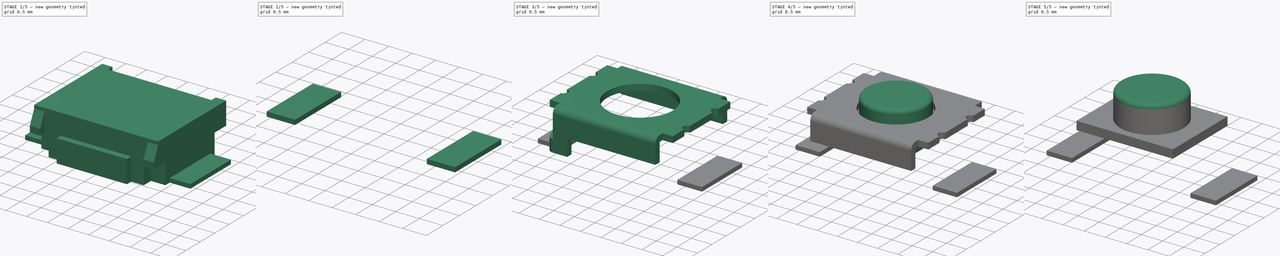
[diagram: build sequence overview — one tinted view per stage of 5, left to right]
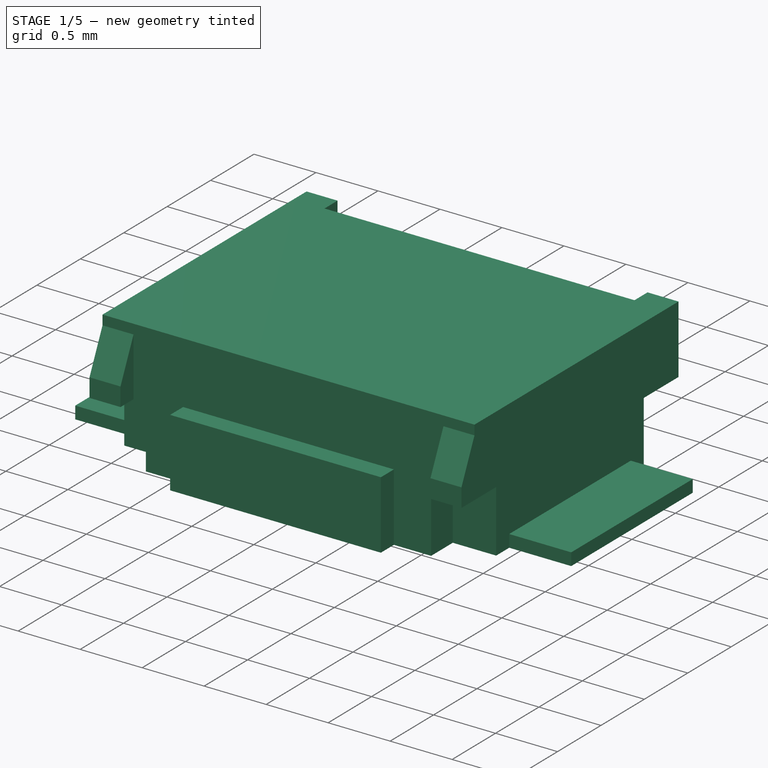
[diagram: stage 1 of 5 — iso view after this stage's code; geometry added in this stage tinted green]
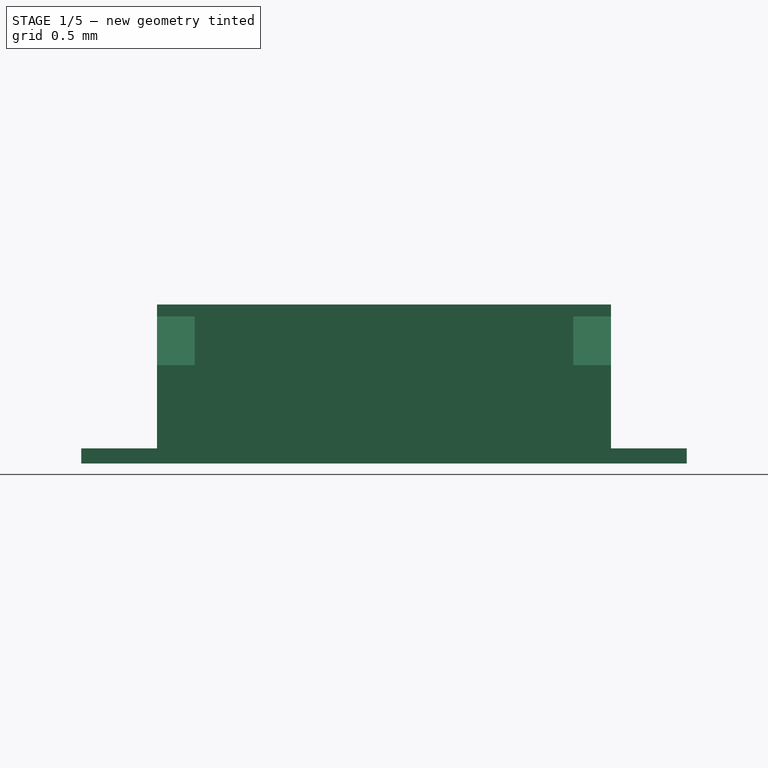
[diagram: stage 1 of 5 — front view after this stage's code; geometry added in this stage tinted green]
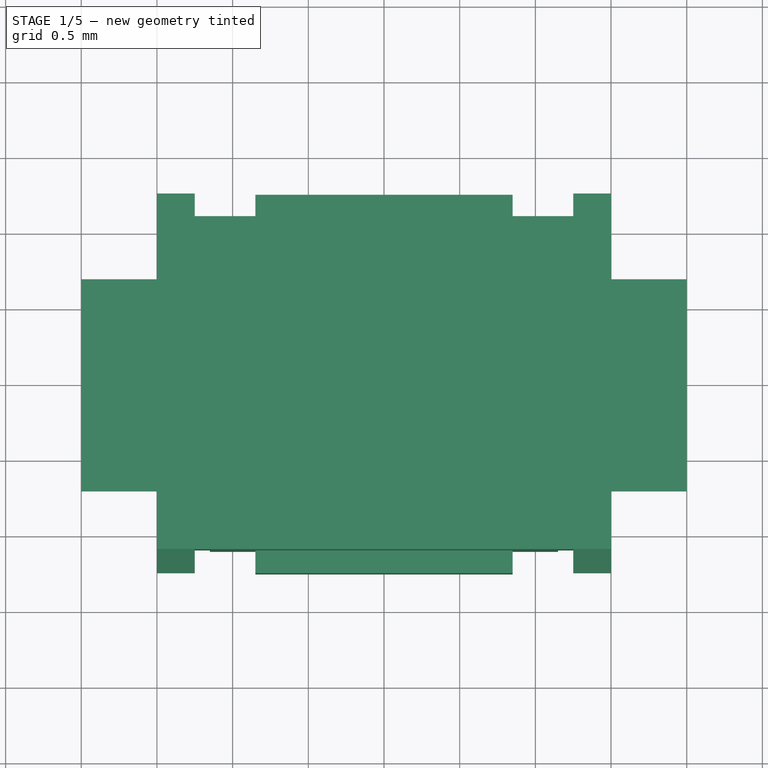
[diagram: stage 1 of 5 — top view after this stage's code; geometry added in this stage tinted green]
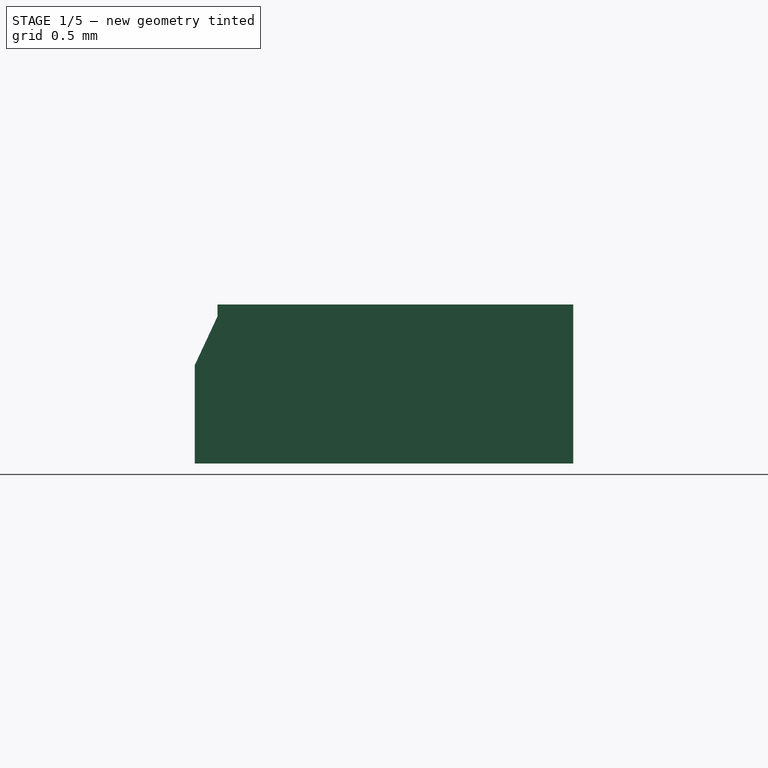
[diagram: stage 1 of 5 — right view after this stage's code; geometry added in this stage tinted green]
FCSTD DOCUMENT  (FreeCAD 1.0R39319 (Git))
Label: SW_Push_TD-1183Sx-1.7-xxx
License: All rights reserved
LicenseURL: https://en.wikipedia.org/wiki/All_rights_reserved
objects: Sketcher::SketchObject×54, PartDesign::Pad×32, PartDesign::Mirrored×24, PartDesign::Pocket×20, PartDesign::Body×16, PartDesign::SubShapeBinder×12, PartDesign::MultiTransform×8, PartDesign::Fillet×8, App::Part×8, Part::Mirroring×4, PartDesign::Plane×4, Image::ImagePlane×4, Part::MultiFuse×4, PartDesign::Revolution×2, App::DocumentObjectGroup×1
note: 398 computed .brp shape members not serialized (recipe doc carries the construction recipe); baked Part::Feature solids carry a one-line shape summary decoded from their .brp

FEATURE [PartDesign::Body] Body004  label="Base001"
  AllowCompound = false
  Group = -> [Sketch014,Pad009,Sketch015,Pocket005,Pocket007,Sketch017,MultiTransform002,Mirrored006,Mirrored007,Sketch016,Pocket006,Mirrored008,Sketch025,Pocket008,Sketch026,Pocket009,Sketch027,Revolution]
  Origin = -> Origin007
  Tip = -> Revolution
FEATURE [PartDesign::SubShapeBinder] Binder006  label="Binder-Base004"
  BindCopyOnChange = 0
  BindMode = 0
  ClaimChildren = false
  Context = -> Part004 [Body009.Binder006.]
  Fuse = false
  MakeFace = true
  OffsetFill = false
  OffsetIntersection = false
  OffsetJoinType = 0
  OffsetOpenResult = false
  PartialLoad = false
  Refine = true
  Relative = true
  Support = -> [Body008]
  _Version = 2
FEATURE [PartDesign::SubShapeBinder] Binder007  label="Binder-Base005"
  BindCopyOnChange = 0
  BindMode = 0
  ClaimChildren = false
  Context = -> Part004 [Part005.Body010.Binder007.]
  Fuse = false
  MakeFace = true
  OffsetFill = false
  OffsetIntersection = false
  OffsetJoinType = 0
  OffsetOpenResult = false
  PartialLoad = false
  Refine = true
  Relative = true
  Support = -> [Body008]
  _Version = 2
FEATURE [PartDesign::SubShapeBinder] Binder008  label="Binder-Shell002"
  BindCopyOnChange = 0
  BindMode = 0
  ClaimChildren = false
  Context = -> Part004 [Body011.Binder008.]
  Fuse = false
  MakeFace = true
  OffsetFill = false
  OffsetIntersection = false
  OffsetJoinType = 0
  OffsetOpenResult = false
  PartialLoad = false
  Refine = true
  Relative = true
  Support = -> [Body009]
  _Version = 2
FEATURE [PartDesign::Plane] DatumPlane002
  AttachmentOffset = pos=(0,0,1.5) rot=(0,0,1;0rad)
  AttachmentSupport = -> [XY_Plane017]
  Length = 60
  MapMode = 5
  Placement = pos=(0,0,1.5) rot=(0,0,1;0rad)
  ResizeMode = 0
  Width = 60
FEATURE [PartDesign::Mirrored] Mirrored012
  MirrorPlane = -> YZ_Plane013
  Refine = true
  Suppressed = false
  TransformMode = 0
FEATURE [PartDesign::Mirrored] Mirrored013
  MirrorPlane = -> XZ_Plane013
  Refine = true
  Suppressed = false
  TransformMode = 0
FEATURE [PartDesign::Mirrored] Mirrored016
  MirrorPlane = -> YZ_Plane014
  Refine = true
  Suppressed = false
  TransformMode = 0
FEATURE [PartDesign::Mirrored] Mirrored017
  MirrorPlane = -> XZ_Plane014
  Refine = true
  Suppressed = false
  TransformMode = 0
FEATURE [Sketcher::SketchObject] Sketch028
  ArcFitTolerance = 1e-06
  AttachmentSupport = -> [XY_Plane013]
  FullyConstrained = true
  MakeInternals = false
  MapMode = 5
  sketch-geometry (5):
    g0: LineSegment StartX=-1.5 StartY=-1.25 StartZ=0 EndX=1.5 EndY=-1.25 EndZ=0
    g1: LineSegment StartX=1.5 StartY=-1.25 StartZ=0 EndX=1.5 EndY=1.25 EndZ=0
    g2: LineSegment StartX=1.5 StartY=1.25 StartZ=0 EndX=-1.5 EndY=1.25 EndZ=0
    g3: LineSegment StartX=-1.5 StartY=1.25 StartZ=0 EndX=-1.5 EndY=-1.25 EndZ=0
    g4: GeomPoint [constr] X=0 Y=0 Z=0
  constraints (12):
    c: Coincident(g0,g1)
    c: Coincident(g1,g2)
    c: Coincident(g2,g3)
    c: Coincident(g3,g0)
    c: Horizontal(g0)
    c: Horizontal(g2)
    c: Vertical(g1)
    c: Vertical(g3)
    c: Symmetric(g2,g0,g4)
    c: Distance(g1,g3) = 3
    c: Distance(g0,g2) = 2.5
    c: Coincident(g4,g-1)
FEATURE [PartDesign::Pad] Pad017  label="Pad-Main002"
  Direction = (0,0,1)
  Length = 1.05
  Length2 = 10
  Profile = -> Sketch028
  ReferenceAxis = -> Sketch028 [N_Axis]
  Refine = true
  Suppressed = false
  Type = 0
FEATURE [Sketcher::SketchObject] Sketch029
  ArcFitTolerance = 1e-06
  AttachmentSupport = -> [Pad017]
  ExternalGeometry = -> [Pad017]
  FullyConstrained = true
  MakeInternals = false
  MapMode = 5
  Placement = pos=(0,-1.25,0) rot=(1,0,0;1.5708rad)
  sketch-geometry (8):
    g0: LineSegment StartX=-1.5 StartY=3e-16 StartZ=0 EndX=-0.85 EndY=0 EndZ=0
    g1: LineSegment StartX=-0.85 StartY=0 StartZ=0 EndX=-0.85 EndY=0.55 EndZ=0
    g2: LineSegment StartX=-0.85 StartY=0.55 StartZ=0 EndX=0 EndY=0.55 EndZ=0
    g3: LineSegment StartX=0 StartY=0.55 StartZ=0 EndX=0 EndY=1.05 EndZ=0
    g4: LineSegment StartX=0 StartY=1.05 StartZ=0 EndX=-1.25 EndY=1.05 EndZ=0
    g5: LineSegment StartX=-1.25 StartY=1.05 StartZ=0 EndX=-1.25 EndY=0.5 EndZ=0
    g6: LineSegment StartX=-1.25 StartY=0.5 StartZ=0 EndX=-1.5 EndY=0.5 EndZ=0
    g7: LineSegment StartX=-1.5 StartY=0.5 StartZ=0 EndX=-1.5 EndY=3e-16 EndZ=0
  constraints (23):
    c: Coincident(g-3,g0)
    c: PointOnObject(g0,g-1)
    c: Coincident(g0,g1)
    c: Vertical(g1)
    c: Coincident(g1,g2)
    c: PointOnObject(g2,g-2)
    c: Horizontal(g2)
    c: Coincident(g2,g3)
    c: PointOnObject(g3,g-2)
    c: Coincident(g3,g4)
    c: Horizontal(g4)
    c: Coincident(g4,g5)
    c: Vertical(g5)
    c: Coincident(g5,g6)
    c: PointOnObject(g6,g-3)
    c: Coincident(g6,g7)
    c: Coincident(g7,g0)
    c: Horizontal(g6)
    c: Horizontal(g4,g-3)
    c: Distance(g6,g6) = 0.25
    c: DistanceY(g7,g7) = 0.5
    c: DistanceX(g2,g2) = 0.85
    c: DistanceY(g1,g1) = 0.55
FEATURE [PartDesign::Pocket] Pocket010  label="Pocket-ShellCutout005"
  BaseFeature = -> Pad017
  Direction = (0,1,-2e-16)
  Length = 0.15
  Length2 = 5
  Offset = -1
  Profile = -> Sketch029
  ReferenceAxis = -> Sketch029 [N_Axis]
  Refine = true
  Suppressed = false
  Type = 0
FEATURE [Sketcher::SketchObject] Sketch031
  ArcFitTolerance = 1e-06
  AttachmentSupport = -> [Pocket010]
  ExternalGeometry = -> [Pocket010]
  FullyConstrained = true
  MakeInternals = false
  MapMode = 5
  Placement = pos=(0,-1.1,0) rot=(1,0,0;1.5708rad)
  sketch-geometry (4):
    g0: LineSegment StartX=-1.5 StartY=0.5 StartZ=0 EndX=-1.5 EndY=0 EndZ=0
    g1: LineSegment StartX=-1.5 StartY=0 StartZ=0 EndX=-1.15 EndY=0 EndZ=0
    g2: LineSegment StartX=-1.15 StartY=0 StartZ=0 EndX=-1.15 EndY=0.5 EndZ=0
    g3: LineSegment StartX=-1.15 StartY=0.5 StartZ=0 EndX=-1.5 EndY=0.5 EndZ=0
  constraints (11):
    c: Coincident(g0,g1)
    c: Coincident(g1,g2)
    c: Coincident(g2,g3)
    c: Coincident(g3,g0)
    c: Vertical(g0)
    c: Vertical(g2)
    c: Horizontal(g1)
    c: Horizontal(g3)
    c: Coincident(g0,g-3)
    c: PointOnObject(g1,g-1)
    c: DistanceX(g1,g1) = 0.35
FEATURE [PartDesign::Pocket] Pocket012  label="Pocket-ShellCutout006"
  BaseFeature = -> Pocket010
  Direction = (0,1,-2e-16)
  Length = 0.25
  Length2 = 5
  Profile = -> Sketch031
  ReferenceAxis = -> Sketch031 [N_Axis]
  Refine = true
  Suppressed = false
  Type = 0
FEATURE [PartDesign::MultiTransform] MultiTransform004
  BaseFeature = -> Pocket012
  Originals = -> [Pocket010,Pocket012]
  Refine = true
  Suppressed = false
  TransformMode = 0
  Transformations = -> [Mirrored012,Mirrored013]
FEATURE [Sketcher::SketchObject] Sketch030
  ArcFitTolerance = 1e-06
  AttachmentSupport = -> [YZ_Plane013]
  ExternalGeometry = -> [MultiTransform004]
  FullyConstrained = true
  MakeInternals = false
  MapMode = 5
  Placement = pos=(0,0,0) rot=(0.57735,0.57735,0.57735;2.0944rad)
  sketch-geometry (4):
    g0: LineSegment StartX=-1.1 StartY=1.05 StartZ=0 EndX=-1.25 EndY=1.05 EndZ=0
    g1: LineSegment StartX=-1.1 StartY=0.971676 StartZ=0 EndX=-1.1 EndY=1.05 EndZ=0
    g2: LineSegment StartX=-1.1 StartY=0.971676 StartZ=0 EndX=-1.25 EndY=0.65 EndZ=0
    g3: LineSegment StartX=-1.25 StartY=1.05 StartZ=0 EndX=-1.25 EndY=0.65 EndZ=0
  constraints (11):
    c: Coincident(g-5,g0)
    c: Horizontal(g0)
    c: PointOnObject(g1,g-5)
    c: Coincident(g1,g0)
    c: Coincident(g1,g2)
    c: Coincident(g3,g0)
    c: Coincident(g3,g2)
    c: Vertical(g3)
    c: Angle(g2,g3) = 0.436332
    c: Vertical(g2,g-4)
    c: DistanceY(g-5,g2) = 0.15
FEATURE [PartDesign::Pocket] Pocket011  label="Pocket-Chamfer002"
  BaseFeature = -> MultiTransform004
  Direction = (-1,0,0)
  Length = 5
  Length2 = 5
  Midplane = true
  Profile = -> Sketch030
  ReferenceAxis = -> Sketch030 [N_Axis]
  Refine = true
  Suppressed = false
  Type = 1
FEATURE [PartDesign::Body] Body008  label="Base002"
  AllowCompound = false
  Group = -> [Sketch028,Pad017,Sketch029,Pocket010,Pocket012,Sketch031,MultiTransform004,Mirrored012,Mirrored013,Sketch030,Pocket011,Mirrored014,Sketch039,Pocket013,Sketch040,Pocket014]
  Origin = -> Origin013
  Tip = -> Pocket014
FEATURE [PartDesign::SubShapeBinder] Binder009  label="Binder-Base006"
  BindCopyOnChange = 0
  BindMode = 0
  ClaimChildren = false
  Context = -> Part006 [Body013.Binder009.]
  Fuse = false
  MakeFace = true
  OffsetFill = false
  OffsetIntersection = false
  OffsetJoinType = 0
  OffsetOpenResult = false
  PartialLoad = false
  Refine = true
  Relative = true
  Support = -> [Body012]
  _Version = 2
FEATURE [PartDesign::SubShapeBinder] Binder010  label="Binder-Base007"
  BindCopyOnChange = 0
  BindMode = 0
  ClaimChildren = false
  Context = -> Part006 [Part007.Body014.Binder010.]
  Fuse = false
  MakeFace = true
  OffsetFill = false
  OffsetIntersection = false
  OffsetJoinType = 0
  OffsetOpenResult = false
  PartialLoad = false
  Refine = true
  Relative = true
  Support = -> [Body012]
  _Version = 2
FEATURE [PartDesign::SubShapeBinder] Binder011  label="Binder-Shell003"
  BindCopyOnChange = 0
  BindMode = 0
  ClaimChildren = false
  Context = -> Part006 [Body015.Binder011.]
  Fuse = false
  MakeFace = true
  OffsetFill = false
  OffsetIntersection = false
  OffsetJoinType = 0
  OffsetOpenResult = false
  PartialLoad = false
  Refine = true
  Relative = true
  Support = -> [Body013]
  _Version = 2
FEATURE [PartDesign::Plane] DatumPlane003
  AttachmentOffset = pos=(0,0,1.5) rot=(0,0,1;0rad)
  AttachmentSupport = -> [XY_Plane023]
  Length = 60
  MapMode = 5
  Placement = pos=(0,0,1.5) rot=(0,0,1;0rad)
  ResizeMode = 0
  Width = 60
FEATURE [PartDesign::Mirrored] Mirrored018
  MirrorPlane = -> YZ_Plane019
  Refine = true
  Suppressed = false
  TransformMode = 0
FEATURE [PartDesign::Mirrored] Mirrored019
  MirrorPlane = -> XZ_Plane019
  Refine = true
  Suppressed = false
  TransformMode = 0
FEATURE [PartDesign::Mirrored] Mirrored022
  MirrorPlane = -> YZ_Plane020
  Refine = true
  Suppressed = false
  TransformMode = 0
FEATURE [PartDesign::Mirrored] Mirrored023
  MirrorPlane = -> XZ_Plane020
  Refine = true
  Suppressed = false
  TransformMode = 0
FEATURE [Sketcher::SketchObject] Sketch041
  ArcFitTolerance = 1e-06
  AttachmentSupport = -> [XY_Plane019]
  FullyConstrained = true
  MakeInternals = false
  MapMode = 5
  sketch-geometry (5):
    g0: LineSegment StartX=-1.5 StartY=-1.25 StartZ=0 EndX=1.5 EndY=-1.25 EndZ=0
    g1: LineSegment StartX=1.5 StartY=-1.25 StartZ=0 EndX=1.5 EndY=1.25 EndZ=0
    g2: LineSegment StartX=1.5 StartY=1.25 StartZ=0 EndX=-1.5 EndY=1.25 EndZ=0
    g3: LineSegment StartX=-1.5 StartY=1.25 StartZ=0 EndX=-1.5 EndY=-1.25 EndZ=0
    g4: GeomPoint [constr] X=0 Y=0 Z=0
  constraints (12):
    c: Coincident(g0,g1)
    c: Coincident(g1,g2)
    c: Coincident(g2,g3)
    c: Coincident(g3,g0)
    c: Horizontal(g0)
    c: Horizontal(g2)
    c: Vertical(g1)
    c: Vertical(g3)
    c: Symmetric(g2,g0,g4)
    c: Distance(g1,g3) = 3
    c: Distance(g0,g2) = 2.5
    c: Coincident(g4,g-1)
FEATURE [PartDesign::Pad] Pad025  label="Pad-Main003"
  Direction = (0,0,1)
  Length = 1.05
  Length2 = 10
  Profile = -> Sketch041
  ReferenceAxis = -> Sketch041 [N_Axis]
  Refine = true
  Suppressed = false
  Type = 0
FEATURE [Sketcher::SketchObject] Sketch042
  ArcFitTolerance = 1e-06
  AttachmentSupport = -> [Pad025]
  ExternalGeometry = -> [Pad025]
  FullyConstrained = true
  MakeInternals = false
  MapMode = 5
  Placement = pos=(0,-1.25,0) rot=(1,0,0;1.5708rad)
  sketch-geometry (8):
    g0: LineSegment StartX=-1.5 StartY=3e-16 StartZ=0 EndX=-0.85 EndY=0 EndZ=0
    g1: LineSegment StartX=-0.85 StartY=0 StartZ=0 EndX=-0.85 EndY=0.55 EndZ=0
    g2: LineSegment StartX=-0.85 StartY=0.55 StartZ=0 EndX=0 EndY=0.55 EndZ=0
    g3: LineSegment StartX=0 StartY=0.55 StartZ=0 EndX=0 EndY=1.05 EndZ=0
    g4: LineSegment StartX=0 StartY=1.05 StartZ=0 EndX=-1.25 EndY=1.05 EndZ=0
    g5: LineSegment StartX=-1.25 StartY=1.05 StartZ=0 EndX=-1.25 EndY=0.5 EndZ=0
    g6: LineSegment StartX=-1.25 StartY=0.5 StartZ=0 EndX=-1.5 EndY=0.5 EndZ=0
    g7: LineSegment StartX=-1.5 StartY=0.5 StartZ=0 EndX=-1.5 EndY=3e-16 EndZ=0
  constraints (23):
    c: Coincident(g-3,g0)
    c: PointOnObject(g0,g-1)
    c: Coincident(g0,g1)
    c: Vertical(g1)
    c: Coincident(g1,g2)
    c: PointOnObject(g2,g-2)
    c: Horizontal(g2)
    c: Coincident(g2,g3)
    c: PointOnObject(g3,g-2)
    c: Coincident(g3,g4)
    c: Horizontal(g4)
    c: Coincident(g4,g5)
    c: Vertical(g5)
    c: Coincident(g5,g6)
    c: PointOnObject(g6,g-3)
    c: Coincident(g6,g7)
    c: Coincident(g7,g0)
    c: Horizontal(g6)
    c: Horizontal(g4,g-3)
    c: Distance(g6,g6) = 0.25
    c: DistanceY(g7,g7) = 0.5
    c: DistanceX(g2,g2) = 0.85
    c: DistanceY(g1,g1) = 0.55
FEATURE [PartDesign::Pocket] Pocket015  label="Pocket-ShellCutout007"
  BaseFeature = -> Pad025
  Direction = (0,1,-2e-16)
  Length = 0.15
  Length2 = 5
  Offset = -1
  Profile = -> Sketch042
  ReferenceAxis = -> Sketch042 [N_Axis]
  Refine = true
  Suppressed = false
  Type = 0
FEATURE [Sketcher::SketchObject] Sketch044
  ArcFitTolerance = 1e-06
  AttachmentSupport = -> [Pocket015]
  ExternalGeometry = -> [Pocket015]
  FullyConstrained = true
  MakeInternals = false
  MapMode = 5
  Placement = pos=(0,-1.1,0) rot=(1,0,0;1.5708rad)
  sketch-geometry (4):
    g0: LineSegment StartX=-1.5 StartY=0.5 StartZ=0 EndX=-1.5 EndY=0 EndZ=0
    g1: LineSegment StartX=-1.5 StartY=0 StartZ=0 EndX=-1.15 EndY=0 EndZ=0
    g2: LineSegment StartX=-1.15 StartY=0 StartZ=0 EndX=-1.15 EndY=0.5 EndZ=0
    g3: LineSegment StartX=-1.15 StartY=0.5 StartZ=0 EndX=-1.5 EndY=0.5 EndZ=0
  constraints (11):
    c: Coincident(g0,g1)
    c: Coincident(g1,g2)
    c: Coincident(g2,g3)
    c: Coincident(g3,g0)
    c: Vertical(g0)
    c: Vertical(g2)
    c: Horizontal(g1)
    c: Horizontal(g3)
    c: Coincident(g0,g-3)
    c: PointOnObject(g1,g-1)
    c: DistanceX(g1,g1) = 0.35
FEATURE [PartDesign::Pocket] Pocket017  label="Pocket-ShellCutout008"
  BaseFeature = -> Pocket015
  Direction = (0,1,-2e-16)
  Length = 0.25
  Length2 = 5
  Profile = -> Sketch044
  ReferenceAxis = -> Sketch044 [N_Axis]
  Refine = true
  Suppressed = false
  Type = 0
FEATURE [PartDesign::MultiTransform] MultiTransform006
  BaseFeature = -> Pocket017
  Originals = -> [Pocket015,Pocket017]
  Refine = true
  Suppressed = false
  TransformMode = 0
  Transformations = -> [Mirrored018,Mirrored019]
FEATURE [Sketcher::SketchObject] Sketch043
  ArcFitTolerance = 1e-06
  AttachmentSupport = -> [YZ_Plane019]
  ExternalGeometry = -> [MultiTransform006]
  FullyConstrained = true
  MakeInternals = false
  MapMode = 5
  Placement = pos=(0,0,0) rot=(0.57735,0.57735,0.57735;2.0944rad)
  sketch-geometry (4):
    g0: LineSegment StartX=-1.1 StartY=1.05 StartZ=0 EndX=-1.25 EndY=1.05 EndZ=0
    g1: LineSegment StartX=-1.1 StartY=0.971676 StartZ=0 EndX=-1.1 EndY=1.05 EndZ=0
    g2: LineSegment StartX=-1.1 StartY=0.971676 StartZ=0 EndX=-1.25 EndY=0.65 EndZ=0
    g3: LineSegment StartX=-1.25 StartY=1.05 StartZ=0 EndX=-1.25 EndY=0.65 EndZ=0
  constraints (11):
    c: Coincident(g-5,g0)
    c: Horizontal(g0)
    c: PointOnObject(g1,g-5)
    c: Coincident(g1,g0)
    c: Coincident(g1,g2)
    c: Coincident(g3,g0)
    c: Coincident(g3,g2)
    c: Vertical(g3)
    c: Angle(g2,g3) = 0.436332
    c: Vertical(g2,g-4)
    c: DistanceY(g-5,g2) = 0.15
FEATURE [PartDesign::Pocket] Pocket016  label="Pocket-Chamfer003"
  BaseFeature = -> MultiTransform006
  Direction = (-1,0,0)
  Length = 5
  Length2 = 5
  Midplane = true
  Profile = -> Sketch043
  ReferenceAxis = -> Sketch043 [N_Axis]
  Refine = true
  Suppressed = false
  Type = 1
FEATURE [PartDesign::Mirrored] Mirrored020
  BaseFeature = -> Pocket016
  MirrorPlane = -> Sketch043 [V_Axis]
  Originals = -> [Pocket016]
  Refine = true
  Suppressed = false
  TransformMode = 0
FEATURE [PartDesign::Body] Body013  label="Shell003"
  AllowCompound = false
  Group = -> [Binder009,Sketch045,Pad026,Sketch046,Pad027,Fillet006,Mirrored021,Sketch047,Pad028,Sketch048,Pad029,MultiTransform007,Mirrored022,Mirrored023]
  Origin = -> Origin020
  Tip = -> MultiTransform007
FEATURE [Sketcher::SketchObject] Sketch049
  ArcFitTolerance = 1e-06
  AttachmentSupport = -> [XY_Plane021]
  FullyConstrained = true
  MakeInternals = false
  MapMode = 5
  sketch-geometry (5):
    g0: LineSegment StartX=-1.4 StartY=0.7 StartZ=0 EndX=-2 EndY=0.7 EndZ=0
    g1: LineSegment StartX=-2 StartY=0.7 StartZ=0 EndX=-2 EndY=-0.7 EndZ=0
    g2: LineSegment StartX=-2 StartY=-0.7 StartZ=0 EndX=-1.4 EndY=-0.7 EndZ=0
    g3: LineSegment StartX=-1.4 StartY=-0.7 StartZ=0 EndX=-1.4 EndY=0.7 EndZ=0
    g4: GeomPoint X=-2 Y=0 Z=0
  constraints (13):
    c: Coincident(g0,g1)
    c: Coincident(g1,g2)
    c: Coincident(g2,g3)
    c: Horizontal(g0)
    c: Horizontal(g2)
    c: Vertical(g1)
    c: Vertical(g3)
    c: DistanceX(g1,g-1) = 2
    c: Symmetric(g1,g1,g4)
    c: PointOnObject(g4,g-1)
    c: DistanceY(g1,g1) = 1.4
    c: Coincident(g3,g0)
    c: Distance(g0,g-3) = 0.1
FEATURE [PartDesign::Pad] Pad030
  Direction = (0,0,1)
  Length = 0.1
  Length2 = 10
  Profile = -> Sketch049
  ReferenceAxis = -> Sketch049 [N_Axis]
  Refine = true
  Suppressed = false
  Type = 0
FEATURE [PartDesign::Body] Body014  label="Terminal003"
  AllowCompound = false
  Group = -> [Binder010,Sketch049,Pad030]
  Origin = -> Origin021
  Tip = -> Pad030
FEATURE [Part::Mirroring] Mirror003  label="Terminal (mirrored)003"
  Base = (0,0,0)
  Normal = (1,0,0)
  Source = -> Body014
FEATURE [PartDesign::Body] Body015  label="Button003"
  AllowCompound = false
  Group = -> [DatumPlane003,Sketch050,Binder011,Pad031,Sketch051,Pad032,Fillet007]
  Origin = -> Origin023
  Tip = -> Fillet007
FEATURE [Sketcher::SketchObject] Sketch052
  ArcFitTolerance = 1e-06
  AttachmentSupport = -> [XY_Plane019]
  ExternalGeometry = -> [Mirrored020]
  FullyConstrained = true
  MakeInternals = false
  MapMode = 5
  sketch-geometry (8):
    g0: LineSegment StartX=1.5 StartY=0.7 StartZ=0 EndX=1.4 EndY=0.7 EndZ=0
    g1: LineSegment StartX=1.4 StartY=0.7 StartZ=0 EndX=1.4 EndY=-0.7 EndZ=0
    g2: LineSegment StartX=1.4 StartY=-0.7 StartZ=0 EndX=1.5 EndY=-0.7 EndZ=0
    g3: LineSegment StartX=1.5 StartY=-0.7 StartZ=0 EndX=1.5 EndY=0.7 EndZ=0
    g4: LineSegment StartX=-1.5 StartY=0.7 StartZ=0 EndX=-1.4 EndY=0.7 EndZ=0
    g5: LineSegment StartX=-1.4 StartY=0.7 StartZ=0 EndX=-1.4 EndY=-0.7 EndZ=0
    g6: LineSegment StartX=-1.4 StartY=-0.7 StartZ=0 EndX=-1.5 EndY=-0.7 EndZ=0
    g7: LineSegment StartX=-1.5 StartY=-0.7 StartZ=0 EndX=-1.5 EndY=0.7 EndZ=0
  constraints (19):
    c: Coincident(g0,g1)
    c: Coincident(g1,g2)
    c: Coincident(g2,g3)
    c: Coincident(g3,g0)
    c: Horizontal(g0)
    c: Horizontal(g2)
    c: Vertical(g1)
    c: PointOnObject(g0,g-3)
    c: DistanceY(g3,g3) = 1.4
    c: Symmetric(g0,g2,g-1)
    c: Distance(g2,g2) = 0.1
    c: Symmetric(g0,g4,g-2)
    c: Symmetric(g0,g4,g-2)
    c: Symmetric(g1,g5,g-2)
    c: Symmetric(g1,g5,g-2)
    c: Symmetric(g2,g6,g-2)
    c: Symmetric(g2,g6,g-2)
    c: Symmetric(g3,g7,g-2)
    c: Symmetric(g3,g7,g-2)
FEATURE [PartDesign::Pocket] Pocket018  label="Pocket-Terminals003"
  BaseFeature = -> Mirrored020
  Direction = (0,0,-1)
  Length = 0.1
  Length2 = 5
  Profile = -> Sketch052
  ReferenceAxis = -> Sketch052 [N_Axis]
  Refine = true
  Reversed = true
  Suppressed = false
  Type = 0
FEATURE [Sketcher::SketchObject] Sketch053
  ArcFitTolerance = 1e-06
  AttachmentSupport = -> [Pocket018]
  FullyConstrained = true
  MakeInternals = false
  MapMode = 5
  Placement = pos=(0,0,1.05) rot=(0,0,1;0rad)
  sketch-geometry (5):
    g0: LineSegment StartX=-1.14 StartY=-0.92 StartZ=0 EndX=1.14 EndY=-0.92 EndZ=0
    g1: LineSegment StartX=1.14 StartY=-0.92 StartZ=0 EndX=1.14 EndY=0.92 EndZ=0
    g2: LineSegment StartX=1.14 StartY=0.92 StartZ=0 EndX=-1.14 EndY=0.92 EndZ=0
    g3: LineSegment StartX=-1.14 StartY=0.92 StartZ=0 EndX=-1.14 EndY=-0.92 EndZ=0
    g4: GeomPoint [constr] X=0 Y=0 Z=0
  constraints (12):
    c: Coincident(g0,g1)
    c: Coincident(g1,g2)
    c: Coincident(g2,g3)
    c: Coincident(g3,g0)
    c: Horizontal(g0)
    c: Horizontal(g2)
    c: Vertical(g1)
    c: Vertical(g3)
    c: Symmetric(g2,g0,g4)
    c: Coincident(g4,g-1)
    c: DistanceX(g2,g2) = 2.28
    c: DistanceY(g3,g3) = 1.84
FEATURE [PartDesign::Pocket] Pocket019  label="Pocker-Button003"
  BaseFeature = -> Pocket018
  Direction = (0,0,-1)
  Length = 0.2
  Length2 = 5
  Profile = -> Sketch053
  ReferenceAxis = -> Sketch053 [N_Axis]
  Refine = true
  Suppressed = false
  Type = 0
FEATURE [Sketcher::SketchObject] Sketch054
  ArcFitTolerance = 1e-06
  AttachmentSupport = -> [XZ_Plane019]
  FullyConstrained = false
  MakeInternals = false
  MapMode = 5
  Placement = pos=(0,0,0) rot=(1,0,0;1.5708rad)
  sketch-geometry (6):
    g0: LineSegment StartX=0 StartY=0 StartZ=0 EndX=0 EndY=-0.5 EndZ=0
    g1: LineSegment StartX=0 StartY=-0.5 StartZ=0 EndX=2e-16 EndY=-0.5 EndZ=0
    g2: LineSegment StartX=0.3 StartY=-0.2 StartZ=0 EndX=0.3 EndY=0 EndZ=0
    g3: LineSegment StartX=0.3 StartY=0 StartZ=0 EndX=0 EndY=0 EndZ=0
    g4: ArcOfCircle CenterX=0 CenterY=-0.2 CenterZ=0 NormalX=0 NormalY=0 NormalZ=1 AngleXU=0 Radius=0.3 StartAngle=4.71239 EndAngle=6.28319
    g5: GeomPoint [constr] X=0.3 Y=-0.5 Z=0
  constraints (1):
    c: Tangent(g1,g4) = -1.5708
FEATURE [PartDesign::Revolution] Revolution001  label="Revolution-LocatingPin001"
  Angle = 360
  Angle2 = 60
  Axis = (0,2e-16,1)
  Base = (0,0,0)
  BaseFeature = -> Pocket019
  Profile = -> Sketch054
  ReferenceAxis = -> Sketch054 [V_Axis]
  Refine = true
  Reversed = true
  Suppressed = false
  Type = 0
FEATURE [App::Part] Part005  label="Terminals002"
  Group = -> [Mirror002,Body010,Fusion002]
  Origin = -> Origin016
FEATURE [App::Part] Part004  label="SW_TD-1183SN-1.5-xxx"
  Group = -> [Body008,Body009,Part005,Body011]
  Origin = -> Origin012
FEATURE [Part::MultiFuse] Fusion003
  Refine = true
  Shapes = -> [Mirror003,Body014]
FEATURE [App::Part] Part007  label="Terminals003"
  Group = -> [Body014,Mirror003,Fusion003]
  Origin = -> Origin022
FEATURE [App::Part] Part006  label="SW_TD-1183SA-1.5-xxx"
  Group = -> [Body012,Body013,Part007,Body015]
  Origin = -> Origin018
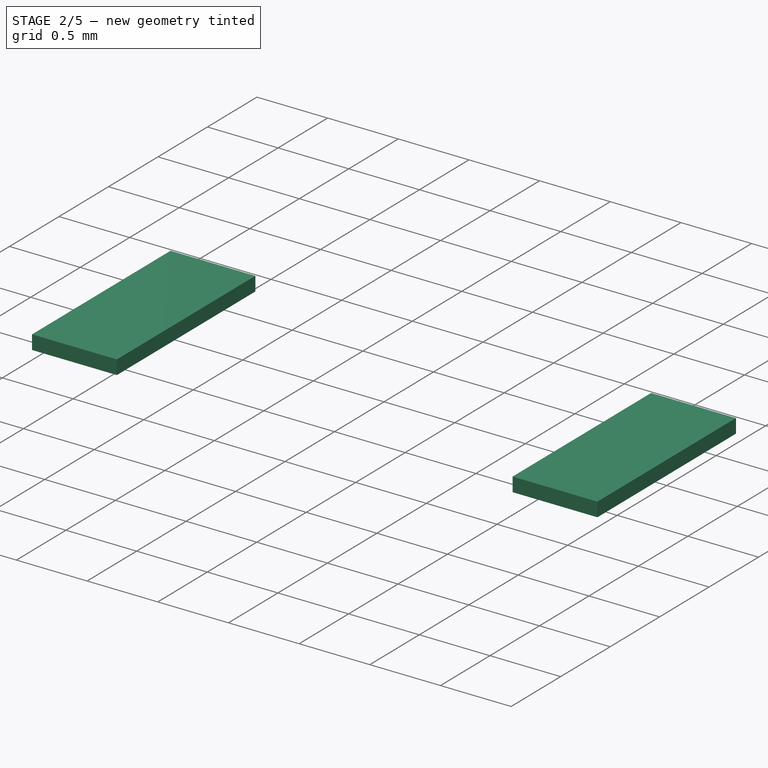
[diagram: stage 2 of 5 — iso view after this stage's code; geometry added in this stage tinted green]
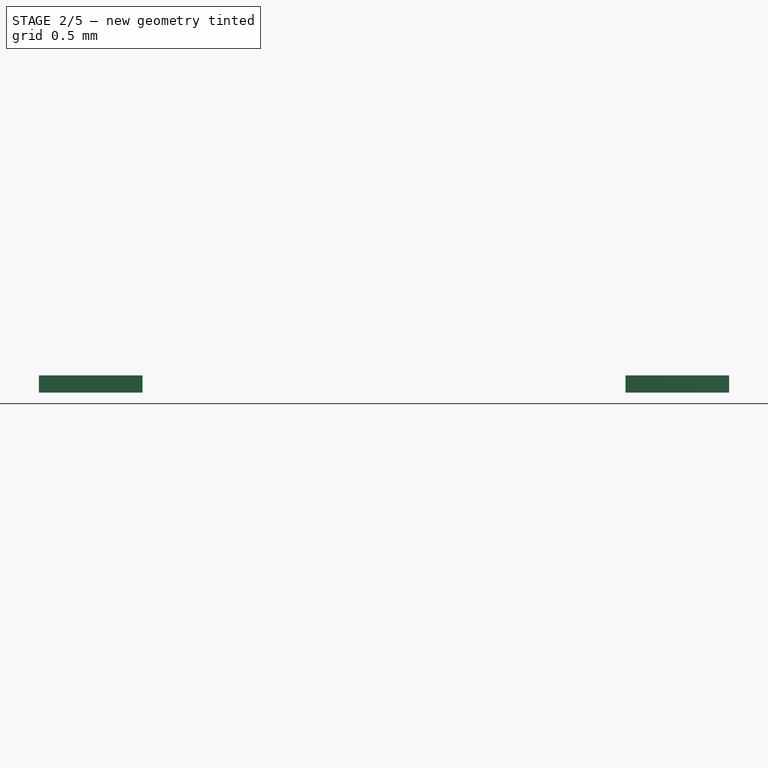
[diagram: stage 2 of 5 — front view after this stage's code; geometry added in this stage tinted green]
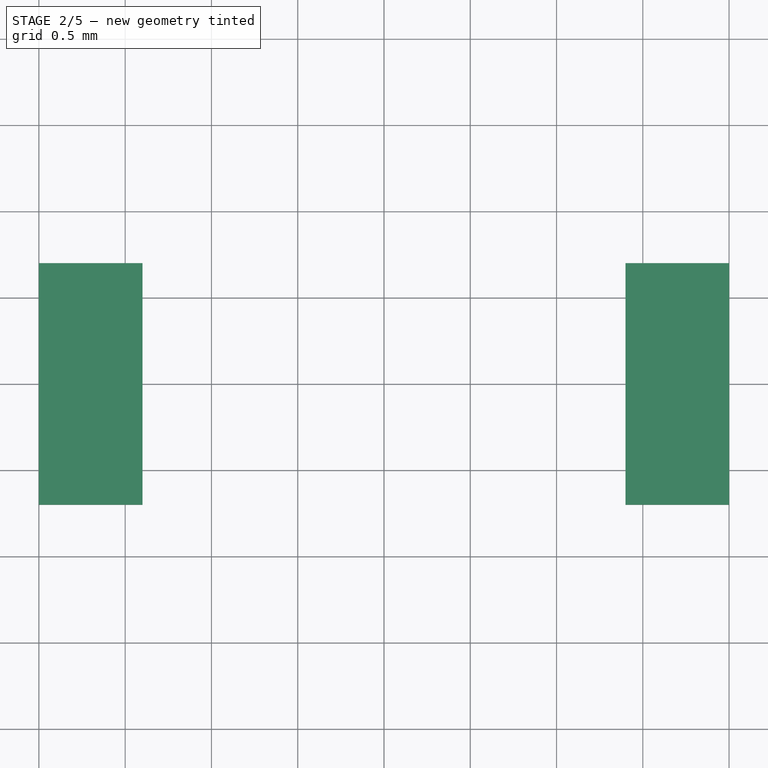
[diagram: stage 2 of 5 — top view after this stage's code; geometry added in this stage tinted green]
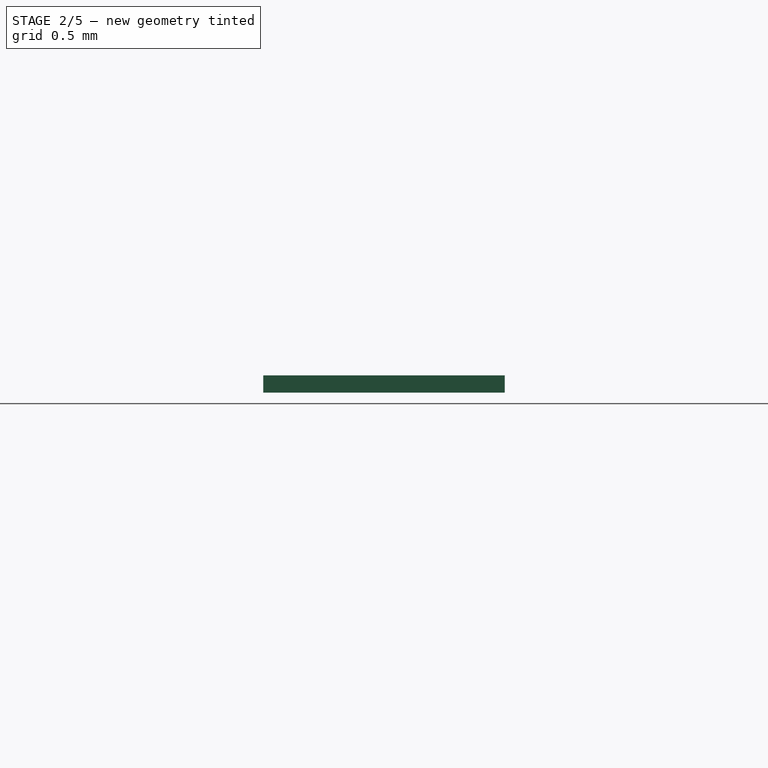
[diagram: stage 2 of 5 — right view after this stage's code; geometry added in this stage tinted green]
FEATURE [PartDesign::Body] Body001  label="Shell"
  AllowCompound = false
  Group = -> [Binder,Sketch004,Pad001,Sketch006,Pad003,Fillet,Mirrored003,Sketch007,Pad004,Sketch008,Pad005,MultiTransform001,Mirrored004,Mirrored005]
  Origin = -> Origin002
  Tip = -> MultiTransform001
FEATURE [PartDesign::SubShapeBinder] Binder003  label="Binder-Base002"
  BindCopyOnChange = 0
  BindMode = 0
  ClaimChildren = false
  Context = -> Part002 [Body005.Binder003.]
  Fuse = false
  MakeFace = true
  OffsetFill = false
  OffsetIntersection = false
  OffsetJoinType = 0
  OffsetOpenResult = false
  PartialLoad = false
  Refine = true
  Relative = true
  Support = -> [Body004]
  _Version = 2
FEATURE [PartDesign::SubShapeBinder] Binder004  label="Binder-Base003"
  BindCopyOnChange = 0
  BindMode = 0
  ClaimChildren = false
  Context = -> Part002 [Part003.Body006.Binder004.]
  Fuse = false
  MakeFace = true
  OffsetFill = false
  OffsetIntersection = false
  OffsetJoinType = 0
  OffsetOpenResult = false
  PartialLoad = false
  Refine = true
  Relative = true
  Support = -> [Body004]
  _Version = 2
FEATURE [PartDesign::SubShapeBinder] Binder005  label="Binder-Shell001"
  BindCopyOnChange = 0
  BindMode = 0
  ClaimChildren = false
  Context = -> Part002 [Body007.Binder005.]
  Fuse = false
  MakeFace = true
  OffsetFill = false
  OffsetIntersection = false
  OffsetJoinType = 0
  OffsetOpenResult = false
  PartialLoad = false
  Refine = true
  Relative = true
  Support = -> [Body005]
  _Version = 2
FEATURE [PartDesign::Plane] DatumPlane001
  AttachmentOffset = pos=(0,0,1.7) rot=(0,0,1;0rad)
  AttachmentSupport = -> [XY_Plane011]
  Length = 60
  MapMode = 5
  Placement = pos=(0,0,1.7) rot=(0,0,1;0rad)
  ResizeMode = 0
  Width = 60
FEATURE [PartDesign::Mirrored] Mirrored006
  MirrorPlane = -> YZ_Plane007
  Refine = true
  Suppressed = false
  TransformMode = 0
FEATURE [PartDesign::Mirrored] Mirrored007
  MirrorPlane = -> XZ_Plane007
  Refine = true
  Suppressed = false
  TransformMode = 0
FEATURE [PartDesign::Mirrored] Mirrored010
  MirrorPlane = -> YZ_Plane008
  Refine = true
  Suppressed = false
  TransformMode = 0
FEATURE [PartDesign::Mirrored] Mirrored011
  MirrorPlane = -> XZ_Plane008
  Refine = true
  Suppressed = false
  TransformMode = 0
FEATURE [Sketcher::SketchObject] Sketch014
  ArcFitTolerance = 1e-06
  AttachmentSupport = -> [XY_Plane007]
  FullyConstrained = true
  MakeInternals = false
  MapMode = 5
  sketch-geometry (5):
    g0: LineSegment StartX=-1.5 StartY=-1.25 StartZ=0 EndX=1.5 EndY=-1.25 EndZ=0
    g1: LineSegment StartX=1.5 StartY=-1.25 StartZ=0 EndX=1.5 EndY=1.25 EndZ=0
    g2: LineSegment StartX=1.5 StartY=1.25 StartZ=0 EndX=-1.5 EndY=1.25 EndZ=0
    g3: LineSegment StartX=-1.5 StartY=1.25 StartZ=0 EndX=-1.5 EndY=-1.25 EndZ=0
    g4: GeomPoint [constr] X=0 Y=0 Z=0
  constraints (12):
    c: Coincident(g0,g1)
    c: Coincident(g1,g2)
    c: Coincident(g2,g3)
    c: Coincident(g3,g0)
    c: Horizontal(g0)
    c: Horizontal(g2)
    c: Vertical(g1)
    c: Vertical(g3)
    c: Symmetric(g2,g0,g4)
    c: Distance(g1,g3) = 3
    c: Distance(g0,g2) = 2.5
    c: Coincident(g4,g-1)
FEATURE [PartDesign::Pad] Pad009  label="Pad-Main001"
  Direction = (0,0,1)
  Length = 1.05
  Length2 = 10
  Profile = -> Sketch014
  ReferenceAxis = -> Sketch014 [N_Axis]
  Refine = true
  Suppressed = false
  Type = 0
FEATURE [Sketcher::SketchObject] Sketch015
  ArcFitTolerance = 1e-06
  AttachmentSupport = -> [Pad009]
  ExternalGeometry = -> [Pad009]
  FullyConstrained = true
  MakeInternals = false
  MapMode = 5
  Placement = pos=(0,-1.25,0) rot=(1,0,0;1.5708rad)
  sketch-geometry (8):
    g0: LineSegment StartX=-1.5 StartY=3e-16 StartZ=0 EndX=-0.85 EndY=0 EndZ=0
    g1: LineSegment StartX=-0.85 StartY=0 StartZ=0 EndX=-0.85 EndY=0.55 EndZ=0
    g2: LineSegment StartX=-0.85 StartY=0.55 StartZ=0 EndX=0 EndY=0.55 EndZ=0
    g3: LineSegment StartX=0 StartY=0.55 StartZ=0 EndX=0 EndY=1.05 EndZ=0
    g4: LineSegment StartX=0 StartY=1.05 StartZ=0 EndX=-1.25 EndY=1.05 EndZ=0
    g5: LineSegment StartX=-1.25 StartY=1.05 StartZ=0 EndX=-1.25 EndY=0.5 EndZ=0
    g6: LineSegment StartX=-1.25 StartY=0.5 StartZ=0 EndX=-1.5 EndY=0.5 EndZ=0
    g7: LineSegment StartX=-1.5 StartY=0.5 StartZ=0 EndX=-1.5 EndY=3e-16 EndZ=0
  constraints (23):
    c: Coincident(g-3,g0)
    c: PointOnObject(g0,g-1)
    c: Coincident(g0,g1)
    c: Vertical(g1)
    c: Coincident(g1,g2)
    c: PointOnObject(g2,g-2)
    c: Horizontal(g2)
    c: Coincident(g2,g3)
    c: PointOnObject(g3,g-2)
    c: Coincident(g3,g4)
    c: Horizontal(g4)
    c: Coincident(g4,g5)
    c: Vertical(g5)
    c: Coincident(g5,g6)
    c: PointOnObject(g6,g-3)
    c: Coincident(g6,g7)
    c: Coincident(g7,g0)
    c: Horizontal(g6)
    c: Horizontal(g4,g-3)
    c: Distance(g6,g6) = 0.25
    c: DistanceY(g7,g7) = 0.5
    c: DistanceX(g2,g2) = 0.85
    c: DistanceY(g1,g1) = 0.55
FEATURE [PartDesign::Pocket] Pocket005  label="Pocket-ShellCutout003"
  BaseFeature = -> Pad009
  Direction = (0,1,-2e-16)
  Length = 0.15
  Length2 = 5
  Offset = -1
  Profile = -> Sketch015
  ReferenceAxis = -> Sketch015 [N_Axis]
  Refine = true
  Suppressed = false
  Type = 0
FEATURE [Sketcher::SketchObject] Sketch017
  ArcFitTolerance = 1e-06
  AttachmentSupport = -> [Pocket005]
  ExternalGeometry = -> [Pocket005]
  FullyConstrained = true
  MakeInternals = false
  MapMode = 5
  Placement = pos=(0,-1.1,0) rot=(1,0,0;1.5708rad)
  sketch-geometry (4):
    g0: LineSegment StartX=-1.5 StartY=0.5 StartZ=0 EndX=-1.5 EndY=0 EndZ=0
    g1: LineSegment StartX=-1.5 StartY=0 StartZ=0 EndX=-1.15 EndY=0 EndZ=0
    g2: LineSegment StartX=-1.15 StartY=0 StartZ=0 EndX=-1.15 EndY=0.5 EndZ=0
    g3: LineSegment StartX=-1.15 StartY=0.5 StartZ=0 EndX=-1.5 EndY=0.5 EndZ=0
  constraints (11):
    c: Coincident(g0,g1)
    c: Coincident(g1,g2)
    c: Coincident(g2,g3)
    c: Coincident(g3,g0)
    c: Vertical(g0)
    c: Vertical(g2)
    c: Horizontal(g1)
    c: Horizontal(g3)
    c: Coincident(g0,g-3)
    c: PointOnObject(g1,g-1)
    c: DistanceX(g1,g1) = 0.35
FEATURE [PartDesign::Pocket] Pocket007  label="Pocket-ShellCutout004"
  BaseFeature = -> Pocket005
  Direction = (0,1,-2e-16)
  Length = 0.25
  Length2 = 5
  Profile = -> Sketch017
  ReferenceAxis = -> Sketch017 [N_Axis]
  Refine = true
  Suppressed = false
  Type = 0
FEATURE [PartDesign::MultiTransform] MultiTransform002
  BaseFeature = -> Pocket007
  Originals = -> [Pocket005,Pocket007]
  Refine = true
  Suppressed = false
  TransformMode = 0
  Transformations = -> [Mirrored006,Mirrored007]
FEATURE [Sketcher::SketchObject] Sketch016
  ArcFitTolerance = 1e-06
  AttachmentSupport = -> [YZ_Plane007]
  ExternalGeometry = -> [MultiTransform002]
  FullyConstrained = true
  MakeInternals = false
  MapMode = 5
  Placement = pos=(0,0,0) rot=(0.57735,0.57735,0.57735;2.0944rad)
  sketch-geometry (4):
    g0: LineSegment StartX=-1.1 StartY=1.05 StartZ=0 EndX=-1.25 EndY=1.05 EndZ=0
    g1: LineSegment StartX=-1.1 StartY=0.971676 StartZ=0 EndX=-1.1 EndY=1.05 EndZ=0
    g2: LineSegment StartX=-1.1 StartY=0.971676 StartZ=0 EndX=-1.25 EndY=0.65 EndZ=0
    g3: LineSegment StartX=-1.25 StartY=1.05 StartZ=0 EndX=-1.25 EndY=0.65 EndZ=0
  constraints (11):
    c: Coincident(g-5,g0)
    c: Horizontal(g0)
    c: PointOnObject(g1,g-5)
    c: Coincident(g1,g0)
    c: Coincident(g1,g2)
    c: Coincident(g3,g0)
    c: Coincident(g3,g2)
    c: Vertical(g3)
    c: Angle(g2,g3) = 0.436332
    c: Vertical(g2,g-4)
    c: DistanceY(g-5,g2) = 0.15
FEATURE [PartDesign::Pocket] Pocket006  label="Pocket-Chamfer001"
  BaseFeature = -> MultiTransform002
  Direction = (-1,0,0)
  Length = 5
  Length2 = 5
  Midplane = true
  Profile = -> Sketch016
  ReferenceAxis = -> Sketch016 [N_Axis]
  Refine = true
  Suppressed = false
  Type = 1
FEATURE [PartDesign::Mirrored] Mirrored008
  BaseFeature = -> Pocket006
  MirrorPlane = -> Sketch016 [V_Axis]
  Originals = -> [Pocket006]
  Refine = true
  Suppressed = false
  TransformMode = 0
FEATURE [PartDesign::Body] Body005  label="Shell001"
  AllowCompound = false
  Group = -> [Binder003,Sketch018,Pad010,Sketch019,Pad011,Fillet002,Mirrored009,Sketch020,Pad012,Sketch021,Pad013,MultiTransform003,Mirrored010,Mirrored011]
  Origin = -> Origin008
  Tip = -> MultiTransform003
FEATURE [Sketcher::SketchObject] Sketch022
  ArcFitTolerance = 1e-06
  AttachmentSupport = -> [XY_Plane009]
  FullyConstrained = true
  MakeInternals = false
  MapMode = 5
  sketch-geometry (5):
    g0: LineSegment StartX=-1.4 StartY=0.7 StartZ=0 EndX=-2 EndY=0.7 EndZ=0
    g1: LineSegment StartX=-2 StartY=0.7 StartZ=0 EndX=-2 EndY=-0.7 EndZ=0
    g2: LineSegment StartX=-2 StartY=-0.7 StartZ=0 EndX=-1.4 EndY=-0.7 EndZ=0
    g3: LineSegment StartX=-1.4 StartY=-0.7 StartZ=0 EndX=-1.4 EndY=0.7 EndZ=0
    g4: GeomPoint X=-2 Y=0 Z=0
  constraints (13):
    c: Coincident(g0,g1)
    c: Coincident(g1,g2)
    c: Coincident(g2,g3)
    c: Horizontal(g0)
    c: Horizontal(g2)
    c: Vertical(g1)
    c: Vertical(g3)
    c: DistanceX(g1,g-1) = 2
    c: Symmetric(g1,g1,g4)
    c: PointOnObject(g4,g-1)
    c: DistanceY(g1,g1) = 1.4
    c: Coincident(g3,g0)
    c: Distance(g0,g-3) = 0.1
FEATURE [PartDesign::Pad] Pad014
  Direction = (0,0,1)
  Length = 0.1
  Length2 = 10
  Profile = -> Sketch022
  ReferenceAxis = -> Sketch022 [N_Axis]
  Refine = true
  Suppressed = false
  Type = 0
FEATURE [PartDesign::Body] Body006  label="Terminal001"
  AllowCompound = false
  Group = -> [Binder004,Sketch022,Pad014]
  Origin = -> Origin009
  Tip = -> Pad014
FEATURE [Part::Mirroring] Mirror001  label="Terminal (mirrored)001"
  Base = (0,0,0)
  Normal = (1,0,0)
  Source = -> Body006
FEATURE [PartDesign::Body] Body007  label="Button001"
  AllowCompound = false
  Group = -> [DatumPlane001,Sketch023,Binder005,Pad015,Sketch024,Pad016,Fillet003]
  Origin = -> Origin011
  Tip = -> Fillet003
FEATURE [Sketcher::SketchObject] Sketch025
  ArcFitTolerance = 1e-06
  AttachmentSupport = -> [XY_Plane007]
  ExternalGeometry = -> [Mirrored008]
  FullyConstrained = true
  MakeInternals = false
  MapMode = 5
  sketch-geometry (8):
    g0: LineSegment StartX=1.5 StartY=0.7 StartZ=0 EndX=1.4 EndY=0.7 EndZ=0
    g1: LineSegment StartX=1.4 StartY=0.7 StartZ=0 EndX=1.4 EndY=-0.7 EndZ=0
    g2: LineSegment StartX=1.4 StartY=-0.7 StartZ=0 EndX=1.5 EndY=-0.7 EndZ=0
    g3: LineSegment StartX=1.5 StartY=-0.7 StartZ=0 EndX=1.5 EndY=0.7 EndZ=0
    g4: LineSegment StartX=-1.5 StartY=0.7 StartZ=0 EndX=-1.4 EndY=0.7 EndZ=0
    g5: LineSegment StartX=-1.4 StartY=0.7 StartZ=0 EndX=-1.4 EndY=-0.7 EndZ=0
    g6: LineSegment StartX=-1.4 StartY=-0.7 StartZ=0 EndX=-1.5 EndY=-0.7 EndZ=0
    g7: LineSegment StartX=-1.5 StartY=-0.7 StartZ=0 EndX=-1.5 EndY=0.7 EndZ=0
  constraints (19):
    c: Coincident(g0,g1)
    c: Coincident(g1,g2)
    c: Coincident(g2,g3)
    c: Coincident(g3,g0)
    c: Horizontal(g0)
    c: Horizontal(g2)
    c: Vertical(g1)
    c: PointOnObject(g0,g-3)
    c: DistanceY(g3,g3) = 1.4
    c: Symmetric(g0,g2,g-1)
    c: Distance(g2,g2) = 0.1
    c: Symmetric(g0,g4,g-2)
    c: Symmetric(g0,g4,g-2)
    c: Symmetric(g1,g5,g-2)
    c: Symmetric(g1,g5,g-2)
    c: Symmetric(g2,g6,g-2)
    c: Symmetric(g2,g6,g-2)
    c: Symmetric(g3,g7,g-2)
    c: Symmetric(g3,g7,g-2)
FEATURE [PartDesign::Pocket] Pocket008  label="Pocket-Terminals001"
  BaseFeature = -> Mirrored008
  Direction = (0,0,-1)
  Length = 0.1
  Length2 = 5
  Profile = -> Sketch025
  ReferenceAxis = -> Sketch025 [N_Axis]
  Refine = true
  Reversed = true
  Suppressed = false
  Type = 0
FEATURE [Sketcher::SketchObject] Sketch026
  ArcFitTolerance = 1e-06
  AttachmentSupport = -> [Pocket008]
  FullyConstrained = true
  MakeInternals = false
  MapMode = 5
  Placement = pos=(0,0,1.05) rot=(0,0,1;0rad)
  sketch-geometry (5):
    g0: LineSegment StartX=-1.14 StartY=-0.92 StartZ=0 EndX=1.14 EndY=-0.92 EndZ=0
    g1: LineSegment StartX=1.14 StartY=-0.92 StartZ=0 EndX=1.14 EndY=0.92 EndZ=0
    g2: LineSegment StartX=1.14 StartY=0.92 StartZ=0 EndX=-1.14 EndY=0.92 EndZ=0
    g3: LineSegment StartX=-1.14 StartY=0.92 StartZ=0 EndX=-1.14 EndY=-0.92 EndZ=0
    g4: GeomPoint [constr] X=0 Y=0 Z=0
  constraints (12):
    c: Coincident(g0,g1)
    c: Coincident(g1,g2)
    c: Coincident(g2,g3)
    c: Coincident(g3,g0)
    c: Horizontal(g0)
    c: Horizontal(g2)
    c: Vertical(g1)
    c: Vertical(g3)
    c: Symmetric(g2,g0,g4)
    c: Coincident(g4,g-1)
    c: DistanceX(g2,g2) = 2.28
    c: DistanceY(g3,g3) = 1.84
FEATURE [PartDesign::Pocket] Pocket009  label="Pocker-Button001"
  BaseFeature = -> Pocket008
  Direction = (0,0,-1)
  Length = 0.2
  Length2 = 5
  Profile = -> Sketch026
  ReferenceAxis = -> Sketch026 [N_Axis]
  Refine = true
  Suppressed = false
  Type = 0
FEATURE [Sketcher::SketchObject] Sketch027
  ArcFitTolerance = 1e-06
  AttachmentSupport = -> [XZ_Plane007]
  FullyConstrained = false
  MakeInternals = false
  MapMode = 5
  Placement = pos=(0,0,0) rot=(1,0,0;1.5708rad)
  sketch-geometry (6):
    g0: LineSegment StartX=0 StartY=0 StartZ=0 EndX=0 EndY=-0.5 EndZ=0
    g1: LineSegment StartX=0 StartY=-0.5 StartZ=0 EndX=0 EndY=-0.5 EndZ=0
    g2: LineSegment StartX=0.3 StartY=-0.2 StartZ=0 EndX=0.3 EndY=0 EndZ=0
    g3: LineSegment StartX=0.3 StartY=0 StartZ=0 EndX=0 EndY=0 EndZ=0
    g4: ArcOfCircle CenterX=0 CenterY=-0.2 CenterZ=0 NormalX=0 NormalY=0 NormalZ=1 AngleXU=0 Radius=0.3 StartAngle=4.71239 EndAngle=6.28319
    g5: GeomPoint [constr] X=0.3 Y=-0.5 Z=0
  constraints (1):
    c: Tangent(g1,g4) = -1.5708
FEATURE [PartDesign::Revolution] Revolution  label="Revolution-LocatingPin"
  Angle = 360
  Angle2 = 60
  Axis = (0,2e-16,1)
  Base = (0,0,0)
  BaseFeature = -> Pocket009
  Profile = -> Sketch027
  ReferenceAxis = -> Sketch027 [V_Axis]
  Refine = true
  Reversed = true
  Suppressed = false
  Type = 0
FEATURE [PartDesign::Mirrored] Mirrored014
  BaseFeature = -> Pocket011
  MirrorPlane = -> Sketch030 [V_Axis]
  Originals = -> [Pocket011]
  Refine = true
  Suppressed = false
  TransformMode = 0
FEATURE [PartDesign::Body] Body009  label="Shell002"
  AllowCompound = false
  Group = -> [Binder006,Sketch032,Pad018,Sketch033,Pad019,Fillet004,Mirrored015,Sketch034,Pad020,Sketch035,Pad021,MultiTransform005,Mirrored016,Mirrored017]
  Origin = -> Origin014
  Tip = -> MultiTransform005
FEATURE [Sketcher::SketchObject] Sketch036
  ArcFitTolerance = 1e-06
  AttachmentSupport = -> [XY_Plane015]
  FullyConstrained = true
  MakeInternals = false
  MapMode = 5
  sketch-geometry (5):
    g0: LineSegment StartX=-1.4 StartY=0.7 StartZ=0 EndX=-2 EndY=0.7 EndZ=0
    g1: LineSegment StartX=-2 StartY=0.7 StartZ=0 EndX=-2 EndY=-0.7 EndZ=0
    g2: LineSegment StartX=-2 StartY=-0.7 StartZ=0 EndX=-1.4 EndY=-0.7 EndZ=0
    g3: LineSegment StartX=-1.4 StartY=-0.7 StartZ=0 EndX=-1.4 EndY=0.7 EndZ=0
    g4: GeomPoint X=-2 Y=0 Z=0
  constraints (13):
    c: Coincident(g0,g1)
    c: Coincident(g1,g2)
    c: Coincident(g2,g3)
    c: Horizontal(g0)
    c: Horizontal(g2)
    c: Vertical(g1)
    c: Vertical(g3)
    c: DistanceX(g1,g-1) = 2
    c: Symmetric(g1,g1,g4)
    c: PointOnObject(g4,g-1)
    c: DistanceY(g1,g1) = 1.4
    c: Coincident(g3,g0)
    c: Distance(g0,g-3) = 0.1
FEATURE [PartDesign::Pad] Pad022
  Direction = (0,0,1)
  Length = 0.1
  Length2 = 10
  Profile = -> Sketch036
  ReferenceAxis = -> Sketch036 [N_Axis]
  Refine = true
  Suppressed = false
  Type = 0
FEATURE [PartDesign::Body] Body010  label="Terminal002"
  AllowCompound = false
  Group = -> [Binder007,Sketch036,Pad022]
  Origin = -> Origin015
  Tip = -> Pad022
FEATURE [Part::Mirroring] Mirror002  label="Terminal (mirrored)002"
  Base = (0,0,0)
  Normal = (1,0,0)
  Source = -> Body010
FEATURE [PartDesign::Body] Body011  label="Button002"
  AllowCompound = false
  Group = -> [DatumPlane002,Sketch037,Binder008,Pad023,Sketch038,Pad024,Fillet005]
  Origin = -> Origin017
  Tip = -> Fillet005
FEATURE [Sketcher::SketchObject] Sketch039
  ArcFitTolerance = 1e-06
  AttachmentSupport = -> [XY_Plane013]
  ExternalGeometry = -> [Mirrored014]
  FullyConstrained = true
  MakeInternals = false
  MapMode = 5
  sketch-geometry (8):
    g0: LineSegment StartX=1.5 StartY=0.7 StartZ=0 EndX=1.4 EndY=0.7 EndZ=0
    g1: LineSegment StartX=1.4 StartY=0.7 StartZ=0 EndX=1.4 EndY=-0.7 EndZ=0
    g2: LineSegment StartX=1.4 StartY=-0.7 StartZ=0 EndX=1.5 EndY=-0.7 EndZ=0
    g3: LineSegment StartX=1.5 StartY=-0.7 StartZ=0 EndX=1.5 EndY=0.7 EndZ=0
    g4: LineSegment StartX=-1.5 StartY=0.7 StartZ=0 EndX=-1.4 EndY=0.7 EndZ=0
    g5: LineSegment StartX=-1.4 StartY=0.7 StartZ=0 EndX=-1.4 EndY=-0.7 EndZ=0
    g6: LineSegment StartX=-1.4 StartY=-0.7 StartZ=0 EndX=-1.5 EndY=-0.7 EndZ=0
    g7: LineSegment StartX=-1.5 StartY=-0.7 StartZ=0 EndX=-1.5 EndY=0.7 EndZ=0
  constraints (19):
    c: Coincident(g0,g1)
    c: Coincident(g1,g2)
    c: Coincident(g2,g3)
    c: Coincident(g3,g0)
    c: Horizontal(g0)
    c: Horizontal(g2)
    c: Vertical(g1)
    c: PointOnObject(g0,g-3)
    c: DistanceY(g3,g3) = 1.4
    c: Symmetric(g0,g2,g-1)
    c: Distance(g2,g2) = 0.1
    c: Symmetric(g0,g4,g-2)
    c: Symmetric(g0,g4,g-2)
    c: Symmetric(g1,g5,g-2)
    c: Symmetric(g1,g5,g-2)
    c: Symmetric(g2,g6,g-2)
    c: Symmetric(g2,g6,g-2)
    c: Symmetric(g3,g7,g-2)
    c: Symmetric(g3,g7,g-2)
FEATURE [PartDesign::Pocket] Pocket013  label="Pocket-Terminals002"
  BaseFeature = -> Mirrored014
  Direction = (0,0,-1)
  Length = 0.1
  Length2 = 5
  Profile = -> Sketch039
  ReferenceAxis = -> Sketch039 [N_Axis]
  Refine = true
  Reversed = true
  Suppressed = false
  Type = 0
FEATURE [Sketcher::SketchObject] Sketch040
  ArcFitTolerance = 1e-06
  AttachmentSupport = -> [Pocket013]
  FullyConstrained = true
  MakeInternals = false
  MapMode = 5
  Placement = pos=(0,0,1.05) rot=(0,0,1;0rad)
  sketch-geometry (5):
    g0: LineSegment StartX=-1.14 StartY=-0.92 StartZ=0 EndX=1.14 EndY=-0.92 EndZ=0
    g1: LineSegment StartX=1.14 StartY=-0.92 StartZ=0 EndX=1.14 EndY=0.92 EndZ=0
    g2: LineSegment StartX=1.14 StartY=0.92 StartZ=0 EndX=-1.14 EndY=0.92 EndZ=0
    g3: LineSegment StartX=-1.14 StartY=0.92 StartZ=0 EndX=-1.14 EndY=-0.92 EndZ=0
    g4: GeomPoint [constr] X=0 Y=0 Z=0
  constraints (12):
    c: Coincident(g0,g1)
    c: Coincident(g1,g2)
    c: Coincident(g2,g3)
    c: Coincident(g3,g0)
    c: Horizontal(g0)
    c: Horizontal(g2)
    c: Vertical(g1)
    c: Vertical(g3)
    c: Symmetric(g2,g0,g4)
    c: Coincident(g4,g-1)
    c: DistanceX(g2,g2) = 2.28
    c: DistanceY(g3,g3) = 1.84
FEATURE [PartDesign::Pocket] Pocket014  label="Pocker-Button002"
  BaseFeature = -> Pocket013
  Direction = (0,0,-1)
  Length = 0.2
  Length2 = 5
  Profile = -> Sketch040
  ReferenceAxis = -> Sketch040 [N_Axis]
  Refine = true
  Suppressed = false
  Type = 0
FEATURE [App::Part] Part003  label="Terminals001"
  Group = -> [Body006,Mirror001,Fusion001]
  Origin = -> Origin010
FEATURE [App::Part] Part002  label="SW_TD-1183SA-1.7-xxx"
  Group = -> [Body004,Body005,Part003,Body007]
  Origin = -> Origin006
FEATURE [Part::MultiFuse] Fusion002
  Refine = true
  Shapes = -> [Mirror002,Body010]
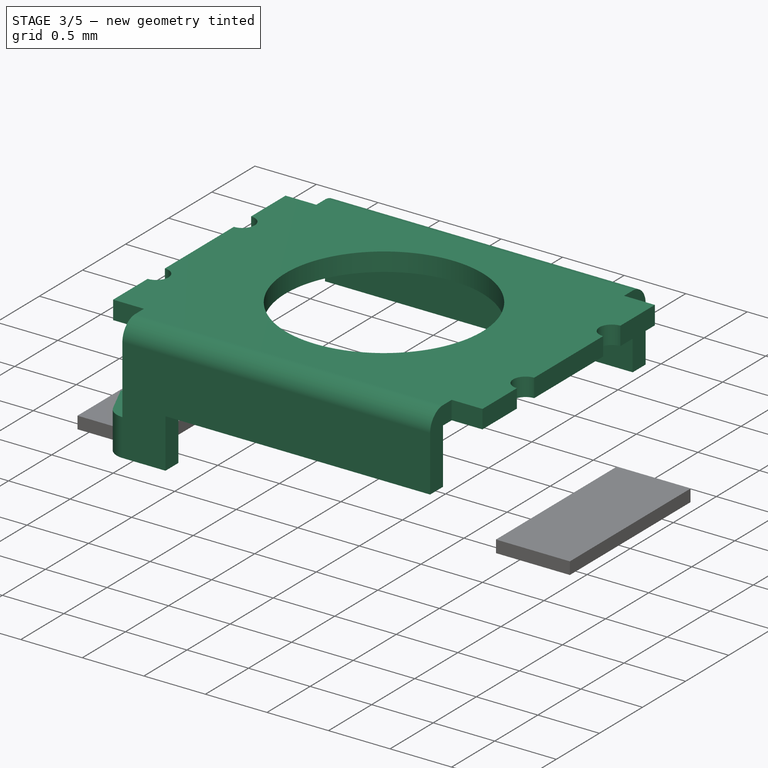
[diagram: stage 3 of 5 — iso view after this stage's code; geometry added in this stage tinted green]
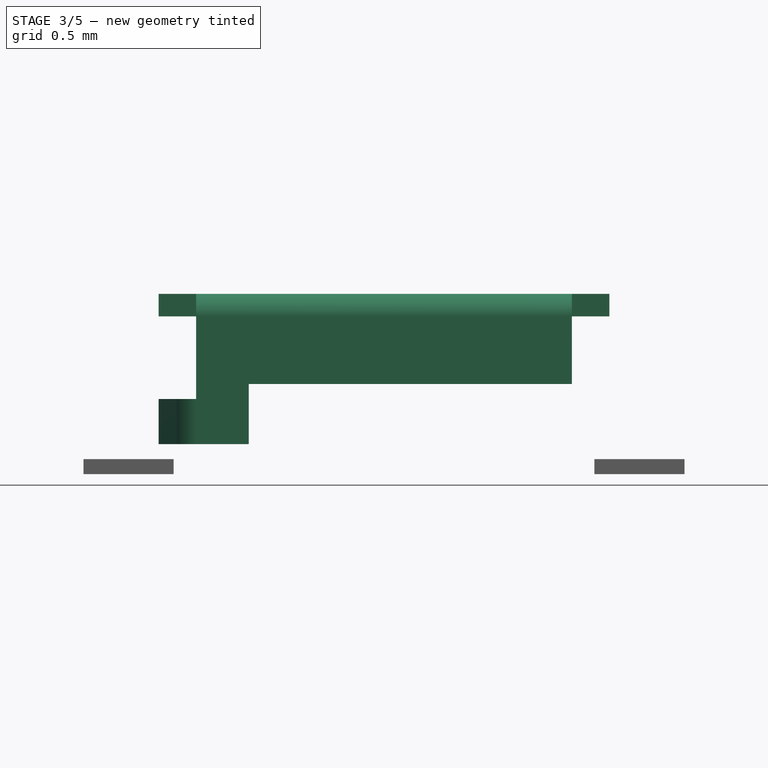
[diagram: stage 3 of 5 — front view after this stage's code; geometry added in this stage tinted green]
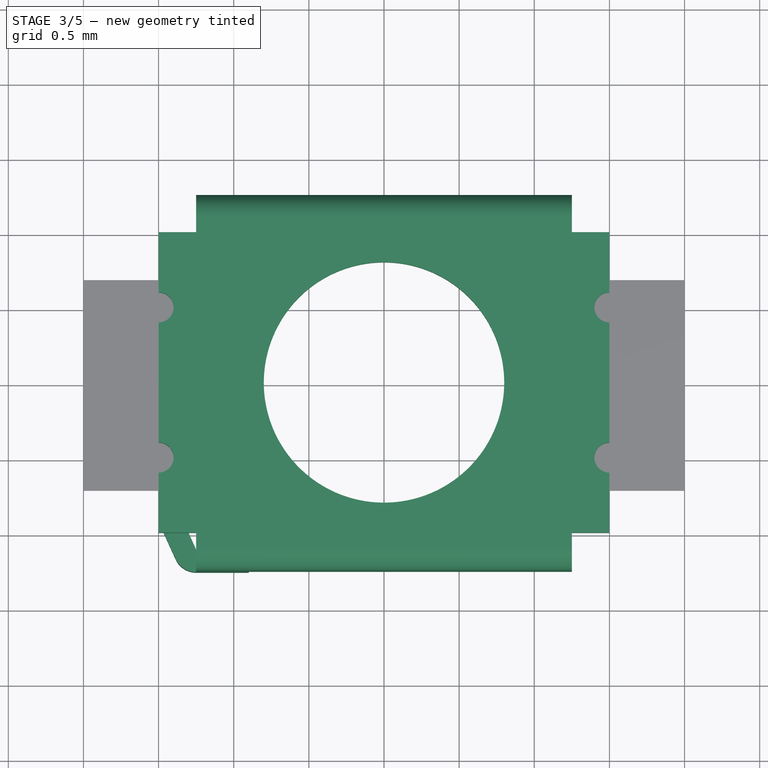
[diagram: stage 3 of 5 — top view after this stage's code; geometry added in this stage tinted green]
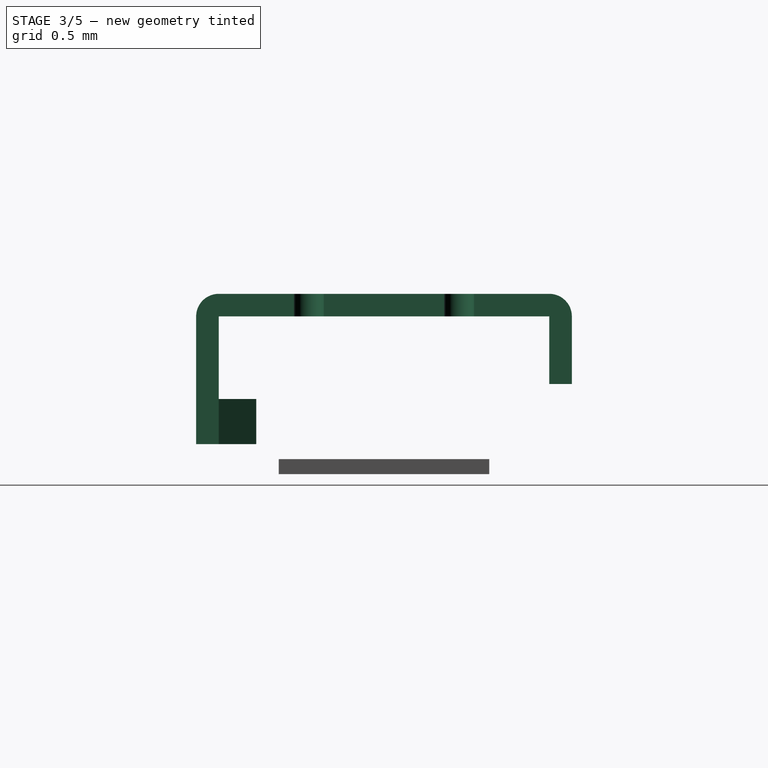
[diagram: stage 3 of 5 — right view after this stage's code; geometry added in this stage tinted green]
FEATURE [Sketcher::SketchObject] Sketch
  ArcFitTolerance = 1e-06
  AttachmentSupport = -> [XY_Plane001]
  FullyConstrained = true
  MakeInternals = false
  MapMode = 5
  sketch-geometry (5):
    g0: LineSegment StartX=-1.5 StartY=-1.25 StartZ=0 EndX=1.5 EndY=-1.25 EndZ=0
    g1: LineSegment StartX=1.5 StartY=-1.25 StartZ=0 EndX=1.5 EndY=1.25 EndZ=0
    g2: LineSegment StartX=1.5 StartY=1.25 StartZ=0 EndX=-1.5 EndY=1.25 EndZ=0
    g3: LineSegment StartX=-1.5 StartY=1.25 StartZ=0 EndX=-1.5 EndY=-1.25 EndZ=0
    g4: GeomPoint [constr] X=0 Y=0 Z=0
  constraints (12):
    c: Coincident(g0,g1)
    c: Coincident(g1,g2)
    c: Coincident(g2,g3)
    c: Coincident(g3,g0)
    c: Horizontal(g0)
    c: Horizontal(g2)
    c: Vertical(g1)
    c: Vertical(g3)
    c: Symmetric(g2,g0,g4)
    c: Distance(g1,g3) = 3
    c: Distance(g0,g2) = 2.5
    c: Coincident(g4,g-1)
FEATURE [PartDesign::Pad] Pad  label="Pad-Main"
  Direction = (0,0,1)
  Length = 1.05
  Length2 = 10
  Profile = -> Sketch
  ReferenceAxis = -> Sketch [N_Axis]
  Refine = true
  Suppressed = false
  Type = 0
FEATURE [Sketcher::SketchObject] Sketch001
  ArcFitTolerance = 1e-06
  AttachmentSupport = -> [Pad]
  ExternalGeometry = -> [Pad]
  FullyConstrained = true
  MakeInternals = false
  MapMode = 5
  Placement = pos=(0,-1.25,0) rot=(1,0,0;1.5708rad)
  sketch-geometry (8):
    g0: LineSegment StartX=-1.5 StartY=3e-16 StartZ=0 EndX=-0.85 EndY=0 EndZ=0
    g1: LineSegment StartX=-0.85 StartY=0 StartZ=0 EndX=-0.85 EndY=0.55 EndZ=0
    g2: LineSegment StartX=-0.85 StartY=0.55 StartZ=0 EndX=0 EndY=0.55 EndZ=0
    g3: LineSegment StartX=0 StartY=0.55 StartZ=0 EndX=0 EndY=1.05 EndZ=0
    g4: LineSegment StartX=0 StartY=1.05 StartZ=0 EndX=-1.25 EndY=1.05 EndZ=0
    g5: LineSegment StartX=-1.25 StartY=1.05 StartZ=0 EndX=-1.25 EndY=0.5 EndZ=0
    g6: LineSegment StartX=-1.25 StartY=0.5 StartZ=0 EndX=-1.5 EndY=0.5 EndZ=0
    g7: LineSegment StartX=-1.5 StartY=0.5 StartZ=0 EndX=-1.5 EndY=3e-16 EndZ=0
  constraints (23):
    c: Coincident(g-3,g0)
    c: PointOnObject(g0,g-1)
    c: Coincident(g0,g1)
    c: Vertical(g1)
    c: Coincident(g1,g2)
    c: PointOnObject(g2,g-2)
    c: Horizontal(g2)
    c: Coincident(g2,g3)
    c: PointOnObject(g3,g-2)
    c: Coincident(g3,g4)
    c: Horizontal(g4)
    c: Coincident(g4,g5)
    c: Vertical(g5)
    c: Coincident(g5,g6)
    c: PointOnObject(g6,g-3)
    c: Coincident(g6,g7)
    c: Coincident(g7,g0)
    c: Horizontal(g6)
    c: Horizontal(g4,g-3)
    c: Distance(g6,g6) = 0.25
    c: DistanceY(g7,g7) = 0.5
    c: DistanceX(g2,g2) = 0.85
    c: DistanceY(g1,g1) = 0.55
FEATURE [PartDesign::Pocket] Pocket  label="Pocket-ShellCutout"
  BaseFeature = -> Pad
  Direction = (0,1,-2e-16)
  Length = 0.15
  Length2 = 5
  Offset = -1
  Profile = -> Sketch001
  ReferenceAxis = -> Sketch001 [N_Axis]
  Refine = true
  Suppressed = false
  Type = 0
FEATURE [PartDesign::Mirrored] Mirrored
  MirrorPlane = -> YZ_Plane001
  Refine = true
  Suppressed = false
  TransformMode = 0
FEATURE [PartDesign::Mirrored] Mirrored001
  MirrorPlane = -> XZ_Plane001
  Refine = true
  Suppressed = false
  TransformMode = 0
FEATURE [Sketcher::SketchObject] Sketch003
  ArcFitTolerance = 1e-06
  AttachmentSupport = -> [Pocket]
  ExternalGeometry = -> [Pocket]
  FullyConstrained = true
  MakeInternals = false
  MapMode = 5
  Placement = pos=(0,-1.1,0) rot=(1,0,0;1.5708rad)
  sketch-geometry (4):
    g0: LineSegment StartX=-1.5 StartY=0.5 StartZ=0 EndX=-1.5 EndY=0 EndZ=0
    g1: LineSegment StartX=-1.5 StartY=0 StartZ=0 EndX=-1.15 EndY=0 EndZ=0
    g2: LineSegment StartX=-1.15 StartY=0 StartZ=0 EndX=-1.15 EndY=0.5 EndZ=0
    g3: LineSegment StartX=-1.15 StartY=0.5 StartZ=0 EndX=-1.5 EndY=0.5 EndZ=0
  constraints (11):
    c: Coincident(g0,g1)
    c: Coincident(g1,g2)
    c: Coincident(g2,g3)
    c: Coincident(g3,g0)
    c: Vertical(g0)
    c: Vertical(g2)
    c: Horizontal(g1)
    c: Horizontal(g3)
    c: Coincident(g0,g-3)
    c: PointOnObject(g1,g-1)
    c: DistanceX(g1,g1) = 0.35
FEATURE [PartDesign::Pocket] Pocket002  label="Pocket-ShellCutout2"
  BaseFeature = -> Pocket
  Direction = (0,1,-2e-16)
  Length = 0.25
  Length2 = 5
  Profile = -> Sketch003
  ReferenceAxis = -> Sketch003 [N_Axis]
  Refine = true
  Suppressed = false
  Type = 0
FEATURE [PartDesign::MultiTransform] MultiTransform
  BaseFeature = -> Pocket002
  Originals = -> [Pocket,Pocket002]
  Refine = true
  Suppressed = false
  TransformMode = 0
  Transformations = -> [Mirrored,Mirrored001]
FEATURE [Sketcher::SketchObject] Sketch002
  ArcFitTolerance = 1e-06
  AttachmentSupport = -> [YZ_Plane001]
  ExternalGeometry = -> [MultiTransform]
  FullyConstrained = true
  MakeInternals = false
  MapMode = 5
  Placement = pos=(0,0,0) rot=(0.57735,0.57735,0.57735;2.0944rad)
  sketch-geometry (4):
    g0: LineSegment StartX=-1.1 StartY=1.05 StartZ=0 EndX=-1.25 EndY=1.05 EndZ=0
    g1: LineSegment StartX=-1.1 StartY=0.971676 StartZ=0 EndX=-1.1 EndY=1.05 EndZ=0
    g2: LineSegment StartX=-1.1 StartY=0.971676 StartZ=0 EndX=-1.25 EndY=0.65 EndZ=0
    g3: LineSegment StartX=-1.25 StartY=1.05 StartZ=0 EndX=-1.25 EndY=0.65 EndZ=0
  constraints (11):
    c: Coincident(g-5,g0)
    c: Horizontal(g0)
    c: PointOnObject(g1,g-5)
    c: Coincident(g1,g0)
    c: Coincident(g1,g2)
    c: Coincident(g3,g0)
    c: Coincident(g3,g2)
    c: Vertical(g3)
    c: Angle(g2,g3) = 0.436332
    c: Vertical(g2,g-4)
    c: DistanceY(g-5,g2) = 0.15
FEATURE [PartDesign::Pocket] Pocket001  label="Pocket-Chamfer"
  BaseFeature = -> MultiTransform
  Direction = (-1,0,0)
  Length = 5
  Length2 = 5
  Midplane = true
  Profile = -> Sketch002
  ReferenceAxis = -> Sketch002 [N_Axis]
  Refine = true
  Suppressed = false
  Type = 1
FEATURE [PartDesign::Mirrored] Mirrored002
  BaseFeature = -> Pocket001
  MirrorPlane = -> Sketch002 [V_Axis]
  Originals = -> [Pocket001]
  Refine = true
  Suppressed = false
  TransformMode = 0
FEATURE [Sketcher::SketchObject] Sketch006
  ArcFitTolerance = 1e-06
  AttachmentSupport = -> [Pad001]
  FullyConstrained = true
  MakeInternals = false
  MapMode = 5
  Placement = pos=(0,0,1.05) rot=(1,0,0;3.14159rad)
  sketch-geometry (4):
    g0: LineSegment StartX=-1.25 StartY=1.1 StartZ=0 EndX=1.25 EndY=1.1 EndZ=0
    g1: LineSegment StartX=1.25 StartY=1.1 StartZ=0 EndX=1.25 EndY=1.25 EndZ=0
    g2: LineSegment StartX=1.25 StartY=1.25 StartZ=0 EndX=-1.25 EndY=1.25 EndZ=0
    g3: LineSegment StartX=-1.25 StartY=1.25 StartZ=0 EndX=-1.25 EndY=1.1 EndZ=0
  constraints (10):
    c: Coincident(g0,g1)
    c: Coincident(g1,g2)
    c: Coincident(g2,g3)
    c: Coincident(g3,g0)
    c: Horizontal(g0)
    c: Horizontal(g2)
    c: Vertical(g1)
    c: Vertical(g3)
    c: Coincident(g0,g-3)
    c: Coincident(g1,g-4)
FEATURE [PartDesign::Mirrored] Mirrored004
  MirrorPlane = -> YZ_Plane002
  Refine = true
  Suppressed = false
  TransformMode = 0
FEATURE [PartDesign::Mirrored] Mirrored005
  MirrorPlane = -> XZ_Plane002
  Refine = true
  Suppressed = false
  TransformMode = 0
FEATURE [PartDesign::SubShapeBinder] Binder001  label="Binder-Base001"
  BindCopyOnChange = 0
  BindMode = 0
  ClaimChildren = false
  Context = -> Part [Part001.Body002.Binder001.]
  Fuse = false
  MakeFace = true
  OffsetFill = false
  OffsetIntersection = false
  OffsetJoinType = 0
  OffsetOpenResult = false
  PartialLoad = false
  Refine = true
  Relative = true
  Support = -> [Body]
  _Version = 2
FEATURE [Sketcher::SketchObject] Sketch009
  ArcFitTolerance = 1e-06
  AttachmentSupport = -> [XY_Plane003]
  FullyConstrained = true
  MakeInternals = false
  MapMode = 5
  sketch-geometry (5):
    g0: LineSegment StartX=-1.4 StartY=0.7 StartZ=0 EndX=-2 EndY=0.7 EndZ=0
    g1: LineSegment StartX=-2 StartY=0.7 StartZ=0 EndX=-2 EndY=-0.7 EndZ=0
    g2: LineSegment StartX=-2 StartY=-0.7 StartZ=0 EndX=-1.4 EndY=-0.7 EndZ=0
    g3: LineSegment StartX=-1.4 StartY=-0.7 StartZ=0 EndX=-1.4 EndY=0.7 EndZ=0
    g4: GeomPoint X=-2 Y=0 Z=0
  constraints (13):
    c: Coincident(g0,g1)
    c: Coincident(g1,g2)
    c: Coincident(g2,g3)
    c: Horizontal(g0)
    c: Horizontal(g2)
    c: Vertical(g1)
    c: Vertical(g3)
    c: DistanceX(g1,g-1) = 2
    c: Symmetric(g1,g1,g4)
    c: PointOnObject(g4,g-1)
    c: DistanceY(g1,g1) = 1.4
    c: Coincident(g3,g0)
    c: Distance(g0,g-3) = 0.1
FEATURE [PartDesign::Pad] Pad006
  Direction = (0,0,1)
  Length = 0.1
  Length2 = 10
  Profile = -> Sketch009
  ReferenceAxis = -> Sketch009 [N_Axis]
  Refine = true
  Suppressed = false
  Type = 0
FEATURE [PartDesign::Body] Body002  label="Terminal"
  AllowCompound = false
  Group = -> [Binder001,Sketch009,Pad006]
  Origin = -> Origin003
  Tip = -> Pad006
FEATURE [Part::Mirroring] Mirror  label="Terminal (mirrored)"
  Base = (0,0,0)
  Normal = (1,0,0)
  Source = -> Body002
FEATURE [Sketcher::SketchObject] Sketch012
  ArcFitTolerance = 1e-06
  AttachmentSupport = -> [XY_Plane001]
  ExternalGeometry = -> [Mirrored002]
  FullyConstrained = true
  MakeInternals = false
  MapMode = 5
  sketch-geometry (8):
    g0: LineSegment StartX=1.5 StartY=0.7 StartZ=0 EndX=1.4 EndY=0.7 EndZ=0
    g1: LineSegment StartX=1.4 StartY=0.7 StartZ=0 EndX=1.4 EndY=-0.7 EndZ=0
    g2: LineSegment StartX=1.4 StartY=-0.7 StartZ=0 EndX=1.5 EndY=-0.7 EndZ=0
    g3: LineSegment StartX=1.5 StartY=-0.7 StartZ=0 EndX=1.5 EndY=0.7 EndZ=0
    g4: LineSegment StartX=-1.5 StartY=0.7 StartZ=0 EndX=-1.4 EndY=0.7 EndZ=0
    g5: LineSegment StartX=-1.4 StartY=0.7 StartZ=0 EndX=-1.4 EndY=-0.7 EndZ=0
    g6: LineSegment StartX=-1.4 StartY=-0.7 StartZ=0 EndX=-1.5 EndY=-0.7 EndZ=0
    g7: LineSegment StartX=-1.5 StartY=-0.7 StartZ=0 EndX=-1.5 EndY=0.7 EndZ=0
  constraints (19):
    c: Coincident(g0,g1)
    c: Coincident(g1,g2)
    c: Coincident(g2,g3)
    c: Coincident(g3,g0)
    c: Horizontal(g0)
    c: Horizontal(g2)
    c: Vertical(g1)
    c: PointOnObject(g0,g-3)
    c: DistanceY(g3,g3) = 1.4
    c: Symmetric(g0,g2,g-1)
    c: Distance(g2,g2) = 0.1
    c: Symmetric(g0,g4,g-2)
    c: Symmetric(g0,g4,g-2)
    c: Symmetric(g1,g5,g-2)
    c: Symmetric(g1,g5,g-2)
    c: Symmetric(g2,g6,g-2)
    c: Symmetric(g2,g6,g-2)
    c: Symmetric(g3,g7,g-2)
    c: Symmetric(g3,g7,g-2)
FEATURE [PartDesign::Pocket] Pocket003  label="Pocket-Terminals"
  BaseFeature = -> Mirrored002
  Direction = (0,0,-1)
  Length = 0.1
  Length2 = 5
  Profile = -> Sketch012
  ReferenceAxis = -> Sketch012 [N_Axis]
  Refine = true
  Reversed = true
  Suppressed = false
  Type = 0
FEATURE [PartDesign::Body] Body003  label="Button"
  AllowCompound = false
  Group = -> [DatumPlane,Sketch010,Binder002,Pad007,Sketch011,Pad008,Fillet001]
  Origin = -> Origin005
  Tip = -> Fillet001
FEATURE [Sketcher::SketchObject] Sketch013
  ArcFitTolerance = 1e-06
  AttachmentSupport = -> [Pocket003]
  FullyConstrained = true
  MakeInternals = false
  MapMode = 5
  Placement = pos=(0,0,1.05) rot=(0,0,1;0rad)
  sketch-geometry (5):
    g0: LineSegment StartX=-1.14 StartY=-0.92 StartZ=0 EndX=1.14 EndY=-0.92 EndZ=0
    g1: LineSegment StartX=1.14 StartY=-0.92 StartZ=0 EndX=1.14 EndY=0.92 EndZ=0
    g2: LineSegment StartX=1.14 StartY=0.92 StartZ=0 EndX=-1.14 EndY=0.92 EndZ=0
    g3: LineSegment StartX=-1.14 StartY=0.92 StartZ=0 EndX=-1.14 EndY=-0.92 EndZ=0
    g4: GeomPoint [constr] X=0 Y=0 Z=0
  constraints (12):
    c: Coincident(g0,g1)
    c: Coincident(g1,g2)
    c: Coincident(g2,g3)
    c: Coincident(g3,g0)
    c: Horizontal(g0)
    c: Horizontal(g2)
    c: Vertical(g1)
    c: Vertical(g3)
    c: Symmetric(g2,g0,g4)
    c: Coincident(g4,g-1)
    c: DistanceX(g2,g2) = 2.28
    c: DistanceY(g3,g3) = 1.84
FEATURE [PartDesign::Pocket] Pocket004  label="Pocker-Button"
  BaseFeature = -> Pocket003
  Direction = (0,0,-1)
  Length = 0.2
  Length2 = 5
  Profile = -> Sketch013
  ReferenceAxis = -> Sketch013 [N_Axis]
  Refine = true
  Suppressed = false
  Type = 0
FEATURE [Sketcher::SketchObject] Sketch045
  ArcFitTolerance = 1e-06
  AttachmentSupport = -> [Binder009]
  ExternalGeometry = -> [Binder009]
  FullyConstrained = true
  MakeInternals = false
  MapMode = 5
  Placement = pos=(0,0,1.05) rot=(0,0,1;0rad)
  sketch-geometry (21):
    g0: LineSegment StartX=-1.5 StartY=-0.6 StartZ=0 EndX=-1.5 EndY=-1 EndZ=0
    g1: LineSegment StartX=1.5 StartY=-1 StartZ=0 EndX=1.5 EndY=-0.6 EndZ=0
    g2: ArcOfCircle CenterX=1.5 CenterY=-0.5 CenterZ=0 NormalX=0 NormalY=0 NormalZ=1 AngleXU=0 Radius=0.1 StartAngle=1.5708 EndAngle=4.71239
    g3: ArcOfCircle CenterX=-1.5 CenterY=-0.5 CenterZ=0 NormalX=0 NormalY=0 NormalZ=1 AngleXU=0 Radius=0.1 StartAngle=4.71239 EndAngle=7.85398
    g4: LineSegment StartX=-1.5 StartY=0.6 StartZ=0 EndX=-1.5 EndY=1 EndZ=0
    g5: LineSegment StartX=1.5 StartY=1 StartZ=0 EndX=1.5 EndY=0.6 EndZ=0
    g6: ArcOfCircle CenterX=1.5 CenterY=0.5 CenterZ=0 NormalX=0 NormalY=0 NormalZ=1 AngleXU=0 Radius=0.1 StartAngle=1.5708 EndAngle=4.71239
    g7: ArcOfCircle CenterX=-1.5 CenterY=0.5 CenterZ=0 NormalX=0 NormalY=0 NormalZ=1 AngleXU=0 Radius=0.1 StartAngle=4.71239 EndAngle=7.85398
    g8: LineSegment StartX=-1.5 StartY=0.4 StartZ=0 EndX=-1.5 EndY=-0.4 EndZ=0
    g9: LineSegment StartX=1.5 StartY=0.4 StartZ=0 EndX=1.5 EndY=-0.4 EndZ=0
    g10: Circle CenterX=0 CenterY=0 CenterZ=0 NormalX=0 NormalY=0 NormalZ=1 AngleXU=0 Radius=0.8
    g11: LineSegment StartX=-1.5 StartY=-1 StartZ=0 EndX=-1.25 EndY=-1 EndZ=0
    g12: LineSegment StartX=-1.25 StartY=-1 StartZ=0 EndX=-1.25 EndY=-1.25 EndZ=0
    g13: LineSegment StartX=-1.25 StartY=-1.25 StartZ=0 EndX=1.25 EndY=-1.25 EndZ=0
    g14: LineSegment StartX=1.25 StartY=-1.25 StartZ=0 EndX=1.25 EndY=-1 EndZ=0
    g15: LineSegment StartX=1.25 StartY=-1 StartZ=0 EndX=1.5 EndY=-1 EndZ=0
    g16: LineSegment StartX=1.5 StartY=1 StartZ=0 EndX=1.25 EndY=1 EndZ=0
    g17: LineSegment StartX=1.25 StartY=1 StartZ=0 EndX=1.25 EndY=1.25 EndZ=0
    g18: LineSegment StartX=1.25 StartY=1.25 StartZ=0 EndX=-1.25 EndY=1.25 EndZ=0
    g19: LineSegment StartX=-1.25 StartY=1.25 StartZ=0 EndX=-1.25 EndY=1 EndZ=0
    g20: LineSegment StartX=-1.25 StartY=1 StartZ=0 EndX=-1.5 EndY=1 EndZ=0
  constraints (59):
    c: Vertical(g0)
    c: Vertical(g1)
    c: Horizontal(g0,g1)
    c: Coincident(g2,g1)
    c: Coincident(g3,g0)
    c: Vertical(g3,g0)
    c: Vertical(g2,g1)
    c: Radius(g2) = 0.1
    c: DistanceY(g2,g-1) = 0.5
    c: Equal(g2,g3)
    c: Perpendicular(g2,g1)
    c: Perpendicular(g3,g0)
    c: Symmetric(g0,g4,g-1)
    c: Symmetric(g0,g4,g-1)
    c: Symmetric(g1,g5,g-1)
    c: Symmetric(g1,g5,g-1)
    c: Symmetric(g2,g6,g-1)
    c: Symmetric(g2,g6,g-1)
    c: Symmetric(g3,g7,g-1)
    c: Symmetric(g3,g7,g-1)
    c: Coincident(g8,g7)
    c: Coincident(g8,g3)
    c: Coincident(g9,g6)
    c: Coincident(g9,g2)
    c: Perpendicular(g7,g8)
    c: Perpendicular(g6,g9)
    c: Coincident(g10,g-1)
    c: Diameter(g10) = 1.6
    c: Horizontal(g11)
    c: Coincident(g11,g12)
    c: Vertical(g12)
    c: Coincident(g12,g13)
    c: Horizontal(g13)
    c: Coincident(g13,g14)
    c: Vertical(g14)
    c: Coincident(g14,g15)
    c: Horizontal(g15)
    c: Coincident(g5,g16)
    c: Coincident(g16,g17)
    c: Vertical(g17)
    c: Coincident(g17,g18)
    c: Horizontal(g18)
    c: Coincident(g18,g19)
    c: Vertical(g19)
    c: Coincident(g19,g20)
    c: Coincident(g20,g4)
    c: Horizontal(g20)
    c: Horizontal(g16)
    c: Coincident(g12,g-5)
    c: Equal(g15,g11)
    c: Equal(g11,g20)
    c: Equal(g19,g12)
    c: Equal(g16,g15)
    c: Coincident(g15,g1)
    c: Vertical(g1,g-4)
    c: Vertical(g11,g-3)
    c: DistanceY(g14,g14) = 0.25
    c: Equal(g14,g12)
    c: Coincident(g0,g11)
FEATURE [PartDesign::Pad] Pad026  label="Pad-Top003"
  Direction = (0,0,1)
  Length = 0.15
  Length2 = 10
  Profile = -> Sketch045
  ReferenceAxis = -> Sketch045 [N_Axis]
  Refine = true
  Suppressed = false
  Type = 0
FEATURE [Sketcher::SketchObject] Sketch046
  ArcFitTolerance = 1e-06
  AttachmentSupport = -> [Pad026]
  FullyConstrained = true
  MakeInternals = false
  MapMode = 5
  Placement = pos=(0,0,1.05) rot=(1,0,0;3.14159rad)
  sketch-geometry (4):
    g0: LineSegment StartX=-1.25 StartY=1.1 StartZ=0 EndX=1.25 EndY=1.1 EndZ=0
    g1: LineSegment StartX=1.25 StartY=1.1 StartZ=0 EndX=1.25 EndY=1.25 EndZ=0
    g2: LineSegment StartX=1.25 StartY=1.25 StartZ=0 EndX=-1.25 EndY=1.25 EndZ=0
    g3: LineSegment StartX=-1.25 StartY=1.25 StartZ=0 EndX=-1.25 EndY=1.1 EndZ=0
  constraints (10):
    c: Coincident(g0,g1)
    c: Coincident(g1,g2)
    c: Coincident(g2,g3)
    c: Coincident(g3,g0)
    c: Horizontal(g0)
    c: Horizontal(g2)
    c: Vertical(g1)
    c: Vertical(g3)
    c: Coincident(g0,g-3)
    c: Coincident(g1,g-4)
FEATURE [PartDesign::Pad] Pad027  label="Pad-Side003"
  BaseFeature = -> Pad026
  Direction = (0,0,-1)
  Length = 10
  Length2 = 10
  Offset = -0.05
  Profile = -> Sketch046
  ReferenceAxis = -> Sketch046 [N_Axis]
  Refine = true
  Suppressed = false
  Type = 3
  UpToFace = -> Binder009 [Face28]
FEATURE [PartDesign::Fillet] Fillet006
  Base = -> Pad027 [Edge32]
  BaseFeature = -> Pad027
  Radius = 0.15
  Refine = true
  SupportTransform = false
  Suppressed = false
  UseAllEdges = false
FEATURE [PartDesign::Mirrored] Mirrored021
  BaseFeature = -> Fillet006
  MirrorPlane = -> XZ_Plane020
  Originals = -> [Pad027,Fillet006]
  Refine = true
  Suppressed = false
  TransformMode = 0
FEATURE [Sketcher::SketchObject] Sketch047
  ArcFitTolerance = 1e-06
  AttachmentSupport = -> [Mirrored021]
  ExternalGeometry = -> [Binder009,Mirrored021]
  FullyConstrained = true
  MakeInternals = false
  MapMode = 5
  Placement = pos=(0,0,0.6) rot=(1,0,0;3.14159rad)
  sketch-geometry (4):
    g0: LineSegment StartX=-1.25 StartY=1.1 StartZ=0 EndX=-0.9 EndY=1.1 EndZ=0
    g1: LineSegment StartX=-0.9 StartY=1.1 StartZ=0 EndX=-0.9 EndY=1.25 EndZ=0
    g2: LineSegment StartX=-0.9 StartY=1.25 StartZ=0 EndX=-1.25 EndY=1.25 EndZ=0
    g3: LineSegment StartX=-1.25 StartY=1.25 StartZ=0 EndX=-1.25 EndY=1.1 EndZ=0
  constraints (11):
    c: Coincident(g0,g1)
    c: Coincident(g1,g2)
    c: Coincident(g2,g3)
    c: Coincident(g3,g0)
    c: Horizontal(g0)
    c: Horizontal(g2)
    c: Vertical(g1)
    c: Vertical(g3)
    c: Coincident(g0,g-4)
    c: Horizontal(g1,g-3)
    c: DistanceX(g1,g-3) = 0.05
FEATURE [PartDesign::Pad] Pad028  label="Pad-TabBase003"
  BaseFeature = -> Mirrored021
  Direction = (0,0,-1)
  Length = 0.4
  Length2 = 10
  Profile = -> Sketch047
  ReferenceAxis = -> Sketch047 [N_Axis]
  Refine = true
  Suppressed = false
  Type = 0
FEATURE [Sketcher::SketchObject] Sketch048
  ArcFitTolerance = 1e-06
  AttachmentSupport = -> [Pad028]
  ExternalGeometry = -> [Pad028,Binder009]
  FullyConstrained = true
  MakeInternals = false
  MapMode = 5
  Placement = pos=(0,0,0.2) rot=(1,0,0;3.14159rad)
  sketch-geometry (5):
    g0: LineSegment StartX=-1.25 StartY=1.1 StartZ=0 EndX=-1.3634 EndY=0.85 EndZ=0
    g1: LineSegment StartX=-1.3634 StartY=0.85 StartZ=0 EndX=-1.5 EndY=0.911961 EndZ=0
    g2: LineSegment StartX=-1.5 StartY=0.911961 StartZ=0 EndX=-1.3866 EndY=1.16196 EndZ=0
    g3: ArcOfCircle CenterX=-1.25 CenterY=1.1 CenterZ=0 NormalX=0 NormalY=0 NormalZ=1 AngleXU=0 Radius=0.15 StartAngle=1.5708 EndAngle=2.71576
    g4: LineSegment StartX=-1.25 StartY=1.25 StartZ=0 EndX=-1.25 EndY=1.1 EndZ=0
  constraints (12):
    c: Coincident(g0,g-3)
    c: Coincident(g0,g1)
    c: Coincident(g1,g2)
    c: Tangent(g3,g-4) = -1.5708
    c: Tangent(g3,g2) = 1.5708
    c: Perpendicular(g1,g2)
    c: Parallel(g2,g0)
    c: Coincident(g4,g3)
    c: Coincident(g4,g0)
    c: PointOnObject(g1,g-5)
    c: PointOnObject(g0,g-6)
    c: Distance(g1,g1) = 0.15
FEATURE [PartDesign::Pad] Pad029  label="Pad-Tab003"
  BaseFeature = -> Pad028
  Direction = (0,0,-1)
  Length = 10
  Length2 = 10
  Profile = -> Sketch048
  ReferenceAxis = -> Sketch048 [N_Axis]
  Refine = true
  Suppressed = false
  Type = 3
  UpToFace = -> Binder009 [Face35]
FEATURE [PartDesign::Body] Body012  label="Base003"
  AllowCompound = false
  Group = -> [Sketch041,Pad025,Sketch042,Pocket015,Pocket017,Sketch044,MultiTransform006,Mirrored018,Mirrored019,Sketch043,Pocket016,Mirrored020,Sketch052,Pocket018,Sketch053,Pocket019,Sketch054,Revolution001]
  Origin = -> Origin019
  Tip = -> Revolution001
FEATURE [Part::MultiFuse] Fusion
  Refine = true
  Shapes = -> [Mirror,Body002]
FEATURE [App::Part] Part001  label="Terminals"
  Group = -> [Body002,Mirror,Fusion]
  Origin = -> Origin004
FEATURE [App::Part] Part  label="SW_TD-1183SN-1.7-xxx"
  Group = -> [Body,Body001,Part001,Body003]
  Origin = -> Origin
FEATURE [Part::MultiFuse] Fusion001
  Refine = true
  Shapes = -> [Mirror001,Body006]
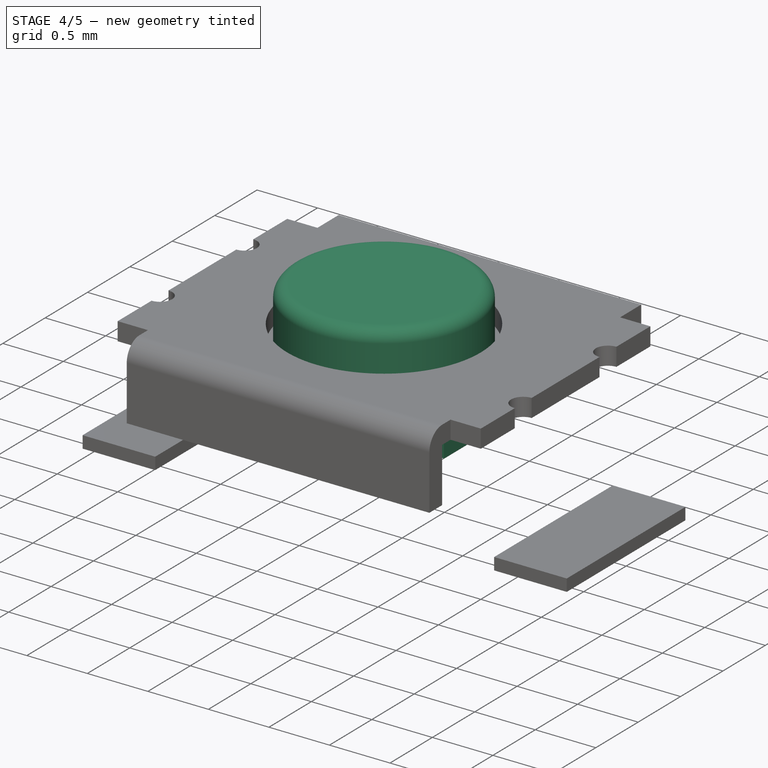
[diagram: stage 4 of 5 — iso view after this stage's code; geometry added in this stage tinted green]
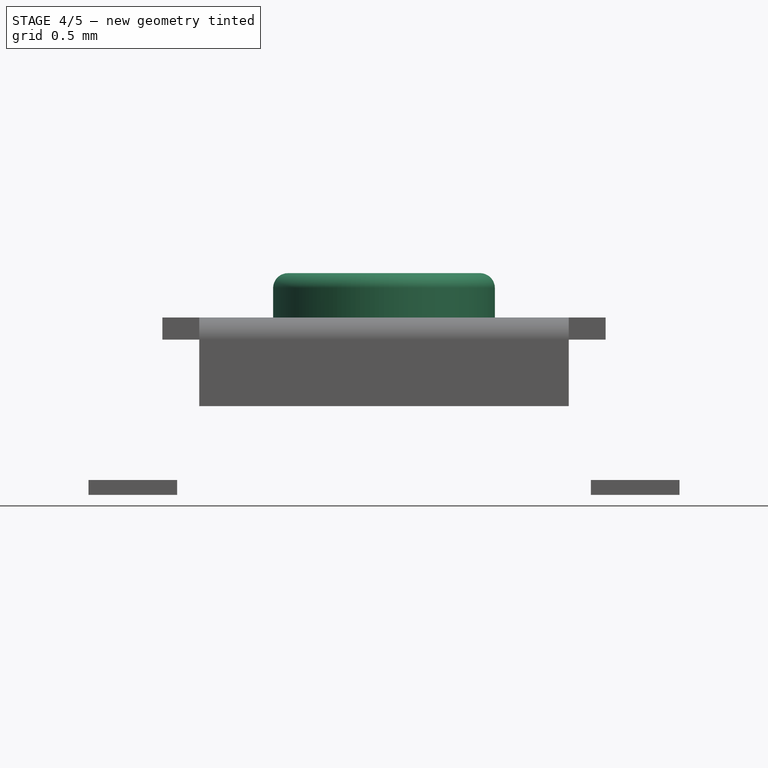
[diagram: stage 4 of 5 — front view after this stage's code; geometry added in this stage tinted green]
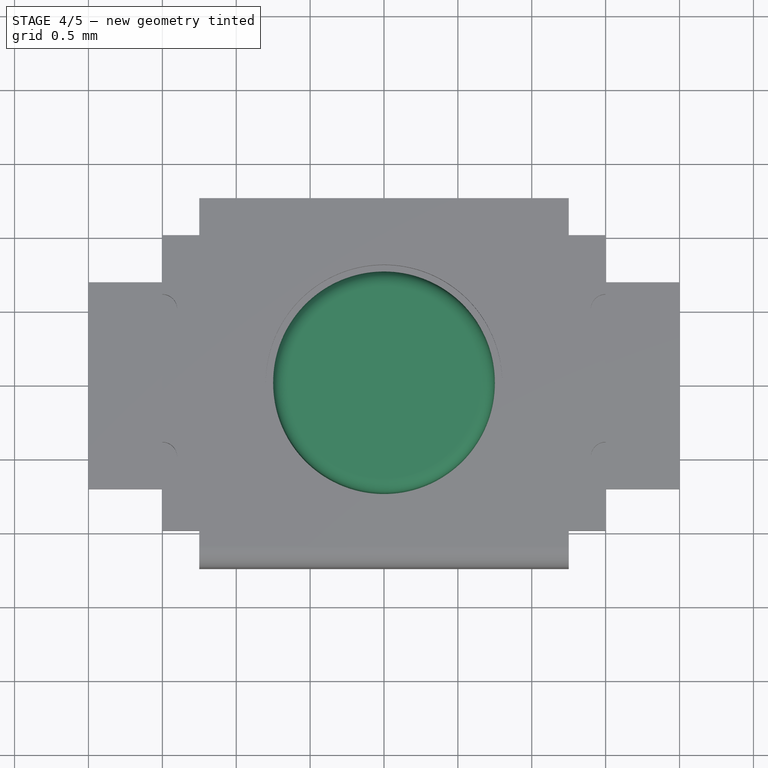
[diagram: stage 4 of 5 — top view after this stage's code; geometry added in this stage tinted green]
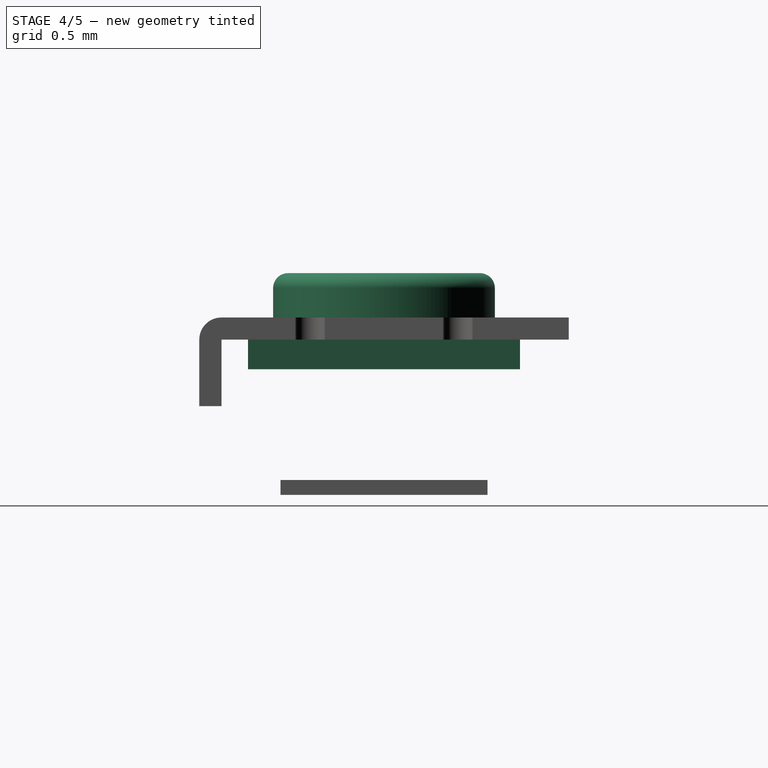
[diagram: stage 4 of 5 — right view after this stage's code; geometry added in this stage tinted green]
FEATURE [Sketcher::SketchObject] Sketch018
  ArcFitTolerance = 1e-06
  AttachmentSupport = -> [Binder003]
  ExternalGeometry = -> [Binder003]
  FullyConstrained = true
  MakeInternals = false
  MapMode = 5
  Placement = pos=(0,0,1.05) rot=(0,0,1;0rad)
  sketch-geometry (21):
    g0: LineSegment StartX=-1.5 StartY=-0.6 StartZ=0 EndX=-1.5 EndY=-1 EndZ=0
    g1: LineSegment StartX=1.5 StartY=-1 StartZ=0 EndX=1.5 EndY=-0.6 EndZ=0
    g2: ArcOfCircle CenterX=1.5 CenterY=-0.5 CenterZ=0 NormalX=0 NormalY=0 NormalZ=1 AngleXU=0 Radius=0.1 StartAngle=1.5708 EndAngle=4.71239
    g3: ArcOfCircle CenterX=-1.5 CenterY=-0.5 CenterZ=0 NormalX=0 NormalY=0 NormalZ=1 AngleXU=0 Radius=0.1 StartAngle=4.71239 EndAngle=7.85398
    g4: LineSegment StartX=-1.5 StartY=0.6 StartZ=0 EndX=-1.5 EndY=1 EndZ=0
    g5: LineSegment StartX=1.5 StartY=1 StartZ=0 EndX=1.5 EndY=0.6 EndZ=0
    g6: ArcOfCircle CenterX=1.5 CenterY=0.5 CenterZ=0 NormalX=0 NormalY=0 NormalZ=1 AngleXU=0 Radius=0.1 StartAngle=1.5708 EndAngle=4.71239
    g7: ArcOfCircle CenterX=-1.5 CenterY=0.5 CenterZ=0 NormalX=0 NormalY=0 NormalZ=1 AngleXU=0 Radius=0.1 StartAngle=4.71239 EndAngle=7.85398
    g8: LineSegment StartX=-1.5 StartY=0.4 StartZ=0 EndX=-1.5 EndY=-0.4 EndZ=0
    g9: LineSegment StartX=1.5 StartY=0.4 StartZ=0 EndX=1.5 EndY=-0.4 EndZ=0
    g10: Circle CenterX=0 CenterY=0 CenterZ=0 NormalX=0 NormalY=0 NormalZ=1 AngleXU=0 Radius=0.8
    g11: LineSegment StartX=-1.5 StartY=-1 StartZ=0 EndX=-1.25 EndY=-1 EndZ=0
    g12: LineSegment StartX=-1.25 StartY=-1 StartZ=0 EndX=-1.25 EndY=-1.25 EndZ=0
    g13: LineSegment StartX=-1.25 StartY=-1.25 StartZ=0 EndX=1.25 EndY=-1.25 EndZ=0
    g14: LineSegment StartX=1.25 StartY=-1.25 StartZ=0 EndX=1.25 EndY=-1 EndZ=0
    g15: LineSegment StartX=1.25 StartY=-1 StartZ=0 EndX=1.5 EndY=-1 EndZ=0
    g16: LineSegment StartX=1.5 StartY=1 StartZ=0 EndX=1.25 EndY=1 EndZ=0
    g17: LineSegment StartX=1.25 StartY=1 StartZ=0 EndX=1.25 EndY=1.25 EndZ=0
    g18: LineSegment StartX=1.25 StartY=1.25 StartZ=0 EndX=-1.25 EndY=1.25 EndZ=0
    g19: LineSegment StartX=-1.25 StartY=1.25 StartZ=0 EndX=-1.25 EndY=1 EndZ=0
    g20: LineSegment StartX=-1.25 StartY=1 StartZ=0 EndX=-1.5 EndY=1 EndZ=0
  constraints (59):
    c: Vertical(g0)
    c: Vertical(g1)
    c: Horizontal(g0,g1)
    c: Coincident(g2,g1)
    c: Coincident(g3,g0)
    c: Vertical(g3,g0)
    c: Vertical(g2,g1)
    c: Radius(g2) = 0.1
    c: DistanceY(g2,g-1) = 0.5
    c: Equal(g2,g3)
    c: Perpendicular(g2,g1)
    c: Perpendicular(g3,g0)
    c: Symmetric(g0,g4,g-1)
    c: Symmetric(g0,g4,g-1)
    c: Symmetric(g1,g5,g-1)
    c: Symmetric(g1,g5,g-1)
    c: Symmetric(g2,g6,g-1)
    c: Symmetric(g2,g6,g-1)
    c: Symmetric(g3,g7,g-1)
    c: Symmetric(g3,g7,g-1)
    c: Coincident(g8,g7)
    c: Coincident(g8,g3)
    c: Coincident(g9,g6)
    c: Coincident(g9,g2)
    c: Perpendicular(g7,g8)
    c: Perpendicular(g6,g9)
    c: Coincident(g10,g-1)
    c: Diameter(g10) = 1.6
    c: Horizontal(g11)
    c: Coincident(g11,g12)
    c: Vertical(g12)
    c: Coincident(g12,g13)
    c: Horizontal(g13)
    c: Coincident(g13,g14)
    c: Vertical(g14)
    c: Coincident(g14,g15)
    c: Horizontal(g15)
    c: Coincident(g5,g16)
    c: Coincident(g16,g17)
    c: Vertical(g17)
    c: Coincident(g17,g18)
    c: Horizontal(g18)
    c: Coincident(g18,g19)
    c: Vertical(g19)
    c: Coincident(g19,g20)
    c: Coincident(g20,g4)
    c: Horizontal(g20)
    c: Horizontal(g16)
    c: Coincident(g12,g-5)
    c: Equal(g15,g11)
    c: Equal(g11,g20)
    c: Equal(g19,g12)
    c: Equal(g16,g15)
    c: Coincident(g15,g1)
    c: Vertical(g1,g-4)
    c: Vertical(g11,g-3)
    c: DistanceY(g14,g14) = 0.25
    c: Equal(g14,g12)
    c: Coincident(g0,g11)
FEATURE [PartDesign::Pad] Pad010  label="Pad-Top001"
  Direction = (0,0,1)
  Length = 0.15
  Length2 = 10
  Profile = -> Sketch018
  ReferenceAxis = -> Sketch018 [N_Axis]
  Refine = true
  Suppressed = false
  Type = 0
FEATURE [Sketcher::SketchObject] Sketch019
  ArcFitTolerance = 1e-06
  AttachmentSupport = -> [Pad010]
  FullyConstrained = true
  MakeInternals = false
  MapMode = 5
  Placement = pos=(0,0,1.05) rot=(1,0,0;3.14159rad)
  sketch-geometry (4):
    g0: LineSegment StartX=-1.25 StartY=1.1 StartZ=0 EndX=1.25 EndY=1.1 EndZ=0
    g1: LineSegment StartX=1.25 StartY=1.1 StartZ=0 EndX=1.25 EndY=1.25 EndZ=0
    g2: LineSegment StartX=1.25 StartY=1.25 StartZ=0 EndX=-1.25 EndY=1.25 EndZ=0
    g3: LineSegment StartX=-1.25 StartY=1.25 StartZ=0 EndX=-1.25 EndY=1.1 EndZ=0
  constraints (10):
    c: Coincident(g0,g1)
    c: Coincident(g1,g2)
    c: Coincident(g2,g3)
    c: Coincident(g3,g0)
    c: Horizontal(g0)
    c: Horizontal(g2)
    c: Vertical(g1)
    c: Vertical(g3)
    c: Coincident(g0,g-3)
    c: Coincident(g1,g-4)
FEATURE [PartDesign::Pad] Pad011  label="Pad-Side001"
  BaseFeature = -> Pad010
  Direction = (0,0,-1)
  Length = 10
  Length2 = 10
  Offset = -0.05
  Profile = -> Sketch019
  ReferenceAxis = -> Sketch019 [N_Axis]
  Refine = true
  Suppressed = false
  Type = 3
  UpToFace = -> Binder003 [Face28]
FEATURE [PartDesign::Fillet] Fillet002
  Base = -> Pad011 [Edge32]
  BaseFeature = -> Pad011
  Radius = 0.15
  Refine = true
  SupportTransform = false
  Suppressed = false
  UseAllEdges = false
FEATURE [Sketcher::SketchObject] Sketch032
  ArcFitTolerance = 1e-06
  AttachmentSupport = -> [Binder006]
  ExternalGeometry = -> [Binder006]
  FullyConstrained = true
  MakeInternals = false
  MapMode = 5
  Placement = pos=(0,0,1.05) rot=(0,0,1;0rad)
  sketch-geometry (21):
    g0: LineSegment StartX=-1.5 StartY=-0.6 StartZ=0 EndX=-1.5 EndY=-1 EndZ=0
    g1: LineSegment StartX=1.5 StartY=-1 StartZ=0 EndX=1.5 EndY=-0.6 EndZ=0
    g2: ArcOfCircle CenterX=1.5 CenterY=-0.5 CenterZ=0 NormalX=0 NormalY=0 NormalZ=1 AngleXU=0 Radius=0.1 StartAngle=1.5708 EndAngle=4.71239
    g3: ArcOfCircle CenterX=-1.5 CenterY=-0.5 CenterZ=0 NormalX=0 NormalY=0 NormalZ=1 AngleXU=0 Radius=0.1 StartAngle=4.71239 EndAngle=7.85398
    g4: LineSegment StartX=-1.5 StartY=0.6 StartZ=0 EndX=-1.5 EndY=1 EndZ=0
    g5: LineSegment StartX=1.5 StartY=1 StartZ=0 EndX=1.5 EndY=0.6 EndZ=0
    g6: ArcOfCircle CenterX=1.5 CenterY=0.5 CenterZ=0 NormalX=0 NormalY=0 NormalZ=1 AngleXU=0 Radius=0.1 StartAngle=1.5708 EndAngle=4.71239
    g7: ArcOfCircle CenterX=-1.5 CenterY=0.5 CenterZ=0 NormalX=0 NormalY=0 NormalZ=1 AngleXU=0 Radius=0.1 StartAngle=4.71239 EndAngle=7.85398
    g8: LineSegment StartX=-1.5 StartY=0.4 StartZ=0 EndX=-1.5 EndY=-0.4 EndZ=0
    g9: LineSegment StartX=1.5 StartY=0.4 StartZ=0 EndX=1.5 EndY=-0.4 EndZ=0
    g10: Circle CenterX=0 CenterY=0 CenterZ=0 NormalX=0 NormalY=0 NormalZ=1 AngleXU=0 Radius=0.8
    g11: LineSegment StartX=-1.5 StartY=-1 StartZ=0 EndX=-1.25 EndY=-1 EndZ=0
    g12: LineSegment StartX=-1.25 StartY=-1 StartZ=0 EndX=-1.25 EndY=-1.25 EndZ=0
    g13: LineSegment StartX=-1.25 StartY=-1.25 StartZ=0 EndX=1.25 EndY=-1.25 EndZ=0
    g14: LineSegment StartX=1.25 StartY=-1.25 StartZ=0 EndX=1.25 EndY=-1 EndZ=0
    g15: LineSegment StartX=1.25 StartY=-1 StartZ=0 EndX=1.5 EndY=-1 EndZ=0
    g16: LineSegment StartX=1.5 StartY=1 StartZ=0 EndX=1.25 EndY=1 EndZ=0
    g17: LineSegment StartX=1.25 StartY=1 StartZ=0 EndX=1.25 EndY=1.25 EndZ=0
    g18: LineSegment StartX=1.25 StartY=1.25 StartZ=0 EndX=-1.25 EndY=1.25 EndZ=0
    g19: LineSegment StartX=-1.25 StartY=1.25 StartZ=0 EndX=-1.25 EndY=1 EndZ=0
    g20: LineSegment StartX=-1.25 StartY=1 StartZ=0 EndX=-1.5 EndY=1 EndZ=0
  constraints (59):
    c: Vertical(g0)
    c: Vertical(g1)
    c: Horizontal(g0,g1)
    c: Coincident(g2,g1)
    c: Coincident(g3,g0)
    c: Vertical(g3,g0)
    c: Vertical(g2,g1)
    c: Radius(g2) = 0.1
    c: DistanceY(g2,g-1) = 0.5
    c: Equal(g2,g3)
    c: Perpendicular(g2,g1)
    c: Perpendicular(g3,g0)
    c: Symmetric(g0,g4,g-1)
    c: Symmetric(g0,g4,g-1)
    c: Symmetric(g1,g5,g-1)
    c: Symmetric(g1,g5,g-1)
    c: Symmetric(g2,g6,g-1)
    c: Symmetric(g2,g6,g-1)
    c: Symmetric(g3,g7,g-1)
    c: Symmetric(g3,g7,g-1)
    c: Coincident(g8,g7)
    c: Coincident(g8,g3)
    c: Coincident(g9,g6)
    c: Coincident(g9,g2)
    c: Perpendicular(g7,g8)
    c: Perpendicular(g6,g9)
    c: Coincident(g10,g-1)
    c: Diameter(g10) = 1.6
    c: Horizontal(g11)
    c: Coincident(g11,g12)
    c: Vertical(g12)
    c: Coincident(g12,g13)
    c: Horizontal(g13)
    c: Coincident(g13,g14)
    c: Vertical(g14)
    c: Coincident(g14,g15)
    c: Horizontal(g15)
    c: Coincident(g5,g16)
    c: Coincident(g16,g17)
    c: Vertical(g17)
    c: Coincident(g17,g18)
    c: Horizontal(g18)
    c: Coincident(g18,g19)
    c: Vertical(g19)
    c: Coincident(g19,g20)
    c: Coincident(g20,g4)
    c: Horizontal(g20)
    c: Horizontal(g16)
    c: Coincident(g12,g-5)
    c: Equal(g15,g11)
    c: Equal(g11,g20)
    c: Equal(g19,g12)
    c: Equal(g16,g15)
    c: Coincident(g15,g1)
    c: Vertical(g1,g-4)
    c: Vertical(g11,g-3)
    c: DistanceY(g14,g14) = 0.25
    c: Equal(g14,g12)
    c: Coincident(g0,g11)
FEATURE [PartDesign::Pad] Pad018  label="Pad-Top002"
  Direction = (0,0,1)
  Length = 0.15
  Length2 = 10
  Profile = -> Sketch032
  ReferenceAxis = -> Sketch032 [N_Axis]
  Refine = true
  Suppressed = false
  Type = 0
FEATURE [Sketcher::SketchObject] Sketch033
  ArcFitTolerance = 1e-06
  AttachmentSupport = -> [Pad018]
  FullyConstrained = true
  MakeInternals = false
  MapMode = 5
  Placement = pos=(0,0,1.05) rot=(1,0,0;3.14159rad)
  sketch-geometry (4):
    g0: LineSegment StartX=-1.25 StartY=1.1 StartZ=0 EndX=1.25 EndY=1.1 EndZ=0
    g1: LineSegment StartX=1.25 StartY=1.1 StartZ=0 EndX=1.25 EndY=1.25 EndZ=0
    g2: LineSegment StartX=1.25 StartY=1.25 StartZ=0 EndX=-1.25 EndY=1.25 EndZ=0
    g3: LineSegment StartX=-1.25 StartY=1.25 StartZ=0 EndX=-1.25 EndY=1.1 EndZ=0
  constraints (10):
    c: Coincident(g0,g1)
    c: Coincident(g1,g2)
    c: Coincident(g2,g3)
    c: Coincident(g3,g0)
    c: Horizontal(g0)
    c: Horizontal(g2)
    c: Vertical(g1)
    c: Vertical(g3)
    c: Coincident(g0,g-3)
    c: Coincident(g1,g-4)
FEATURE [PartDesign::Pad] Pad019  label="Pad-Side002"
  BaseFeature = -> Pad018
  Direction = (0,0,-1)
  Length = 10
  Length2 = 10
  Offset = -0.05
  Profile = -> Sketch033
  ReferenceAxis = -> Sketch033 [N_Axis]
  Refine = true
  Suppressed = false
  Type = 3
  UpToFace = -> Binder006 [Face12]
FEATURE [PartDesign::Fillet] Fillet004
  Base = -> Pad019 [Edge32]
  BaseFeature = -> Pad019
  Radius = 0.15
  Refine = true
  SupportTransform = false
  Suppressed = false
  UseAllEdges = false
FEATURE [PartDesign::Mirrored] Mirrored015
  BaseFeature = -> Fillet004
  MirrorPlane = -> XZ_Plane014
  Originals = -> [Pad019,Fillet004]
  Refine = true
  Suppressed = false
  TransformMode = 0
FEATURE [Sketcher::SketchObject] Sketch034
  ArcFitTolerance = 1e-06
  AttachmentSupport = -> [Mirrored015]
  ExternalGeometry = -> [Binder006,Mirrored015]
  FullyConstrained = true
  MakeInternals = false
  MapMode = 5
  Placement = pos=(0,0,0.6) rot=(1,0,0;3.14159rad)
  sketch-geometry (4):
    g0: LineSegment StartX=-1.25 StartY=1.1 StartZ=0 EndX=-0.9 EndY=1.1 EndZ=0
    g1: LineSegment StartX=-0.9 StartY=1.1 StartZ=0 EndX=-0.9 EndY=1.25 EndZ=0
    g2: LineSegment StartX=-0.9 StartY=1.25 StartZ=0 EndX=-1.25 EndY=1.25 EndZ=0
    g3: LineSegment StartX=-1.25 StartY=1.25 StartZ=0 EndX=-1.25 EndY=1.1 EndZ=0
  constraints (11):
    c: Coincident(g0,g1)
    c: Coincident(g1,g2)
    c: Coincident(g2,g3)
    c: Coincident(g3,g0)
    c: Horizontal(g0)
    c: Horizontal(g2)
    c: Vertical(g1)
    c: Vertical(g3)
    c: Coincident(g0,g-4)
    c: Horizontal(g1,g-3)
    c: DistanceX(g1,g-3) = 0.05
FEATURE [PartDesign::Pad] Pad020  label="Pad-TabBase002"
  BaseFeature = -> Mirrored015
  Direction = (0,0,-1)
  Length = 0.4
  Length2 = 10
  Profile = -> Sketch034
  ReferenceAxis = -> Sketch034 [N_Axis]
  Refine = true
  Suppressed = false
  Type = 0
FEATURE [Sketcher::SketchObject] Sketch035
  ArcFitTolerance = 1e-06
  AttachmentSupport = -> [Pad020]
  ExternalGeometry = -> [Pad020,Binder006]
  FullyConstrained = true
  MakeInternals = false
  MapMode = 5
  Placement = pos=(0,0,0.2) rot=(1,0,0;3.14159rad)
  sketch-geometry (5):
    g0: LineSegment StartX=-1.25 StartY=1.1 StartZ=0 EndX=-1.3634 EndY=0.85 EndZ=0
    g1: LineSegment StartX=-1.3634 StartY=0.85 StartZ=0 EndX=-1.5 EndY=0.911961 EndZ=0
    g2: LineSegment StartX=-1.5 StartY=0.911961 StartZ=0 EndX=-1.3866 EndY=1.16196 EndZ=0
    g3: ArcOfCircle CenterX=-1.25 CenterY=1.1 CenterZ=0 NormalX=0 NormalY=0 NormalZ=1 AngleXU=0 Radius=0.15 StartAngle=1.5708 EndAngle=2.71576
    g4: LineSegment StartX=-1.25 StartY=1.25 StartZ=0 EndX=-1.25 EndY=1.1 EndZ=0
  constraints (12):
    c: Coincident(g0,g-3)
    c: Coincident(g0,g1)
    c: Coincident(g1,g2)
    c: Tangent(g3,g-4) = -1.5708
    c: Tangent(g3,g2) = 1.5708
    c: Perpendicular(g1,g2)
    c: Parallel(g2,g0)
    c: Coincident(g4,g3)
    c: Coincident(g4,g0)
    c: PointOnObject(g1,g-5)
    c: PointOnObject(g0,g-6)
    c: Distance(g1,g1) = 0.15
FEATURE [PartDesign::Pad] Pad021  label="Pad-Tab002"
  BaseFeature = -> Pad020
  Direction = (0,0,-1)
  Length = 10
  Length2 = 10
  Profile = -> Sketch035
  ReferenceAxis = -> Sketch035 [N_Axis]
  Refine = true
  Suppressed = false
  Type = 3
  UpToFace = -> Binder006 [Face18]
FEATURE [PartDesign::MultiTransform] MultiTransform005  label="MultiTransform-Tabs002"
  BaseFeature = -> Pad021
  Originals = -> [Pad020,Pad021]
  Refine = true
  Suppressed = false
  TransformMode = 0
  Transformations = -> [Mirrored016,Mirrored017]
FEATURE [Sketcher::SketchObject] Sketch037
  ArcFitTolerance = 1e-06
  AttachmentSupport = -> [DatumPlane002]
  FullyConstrained = true
  MakeInternals = false
  MapMode = 5
  Placement = pos=(0,0,1.5) rot=(0,0,1;0rad)
  sketch-geometry (1):
    g0: Circle CenterX=0 CenterY=0 CenterZ=0 NormalX=0 NormalY=0 NormalZ=1 AngleXU=0 Radius=0.75
  constraints (2):
    c: Diameter(g0) = 1.5
    c: Coincident(g0,g-1)
FEATURE [PartDesign::Pad] Pad023  label="Pad-ButtonTop002"
  Direction = (0,0,1)
  Length = 10
  Length2 = 10
  Placement = pos=(0,0,1.5) rot=(0,0,1;0rad)
  Profile = -> Sketch037
  ReferenceAxis = -> Sketch037 [N_Axis]
  Refine = true
  Suppressed = false
  Type = 3
  UpToFace = -> Binder008 [Face27]
FEATURE [Sketcher::SketchObject] Sketch038
  ArcFitTolerance = 1e-06
  AttachmentSupport = -> [Pad023]
  ExternalGeometry = -> [Binder008]
  FullyConstrained = true
  MakeInternals = false
  MapMode = 5
  Placement = pos=(0,0,1.05) rot=(1,0,0;3.14159rad)
  sketch-geometry (7):
    g0: LineSegment StartX=1.14 StartY=0.92 StartZ=0 EndX=1.14 EndY=-0.92 EndZ=0
    g1: LineSegment StartX=1.14 StartY=-0.92 StartZ=0 EndX=-1.14 EndY=-0.92 EndZ=0
    g2: LineSegment StartX=-1.14 StartY=-0.92 StartZ=0 EndX=-1.14 EndY=0.92 EndZ=0
    g3: LineSegment StartX=-1.14 StartY=0.92 StartZ=0 EndX=1.14 EndY=0.92 EndZ=0
    g4: GeomPoint [constr] X=0 Y=0 Z=0
    g5: LineSegment [constr] StartX=-1.14 StartY=-0.92 StartZ=0 EndX=-1.5 EndY=-0.92 EndZ=0
    g6: LineSegment [constr] StartX=-1.14 StartY=-0.92 StartZ=0 EndX=-1.14 EndY=-1.1 EndZ=0
  constraints (18):
    c: Coincident(g0,g1)
    c: Coincident(g1,g2)
    c: Coincident(g2,g3)
    c: Coincident(g3,g0)
    c: Vertical(g0)
    c: Vertical(g2)
    c: Horizontal(g1)
    c: Horizontal(g3)
    c: Symmetric(g2,g0,g4)
    c: Coincident(g4,g-1)
    c: DistanceX(g1,g1) = 2.28
    c: Coincident(g5,g1)
    c: PointOnObject(g5,g-4)
    c: Coincident(g6,g1)
    c: PointOnObject(g6,g-3)
    c: Vertical(g6)
    c: Horizontal(g5)
    c: DistanceY(g6,g6) = 0.18
FEATURE [PartDesign::Pad] Pad024
  BaseFeature = -> Pad023
  Direction = (0,0,-1)
  Length = 0.2
  Length2 = 10
  Placement = pos=(0,0,1.5) rot=(0,0,1;0rad)
  Profile = -> Sketch038
  ReferenceAxis = -> Sketch038 [N_Axis]
  Refine = true
  Suppressed = false
  Type = 0
FEATURE [PartDesign::Fillet] Fillet005
  Base = -> Pad024 [Edge3]
  BaseFeature = -> Pad024
  Placement = pos=(0,0,1.5) rot=(0,0,1;0rad)
  Radius = 0.1
  Refine = true
  SupportTransform = false
  Suppressed = false
  UseAllEdges = false
FEATURE [PartDesign::MultiTransform] MultiTransform007  label="MultiTransform-Tabs003"
  BaseFeature = -> Pad029
  Originals = -> [Pad028,Pad029]
  Refine = true
  Suppressed = false
  TransformMode = 0
  Transformations = -> [Mirrored022,Mirrored023]
FEATURE [Sketcher::SketchObject] Sketch050
  ArcFitTolerance = 1e-06
  AttachmentSupport = -> [DatumPlane003]
  FullyConstrained = true
  MakeInternals = false
  MapMode = 5
  Placement = pos=(0,0,1.5) rot=(0,0,1;0rad)
  sketch-geometry (1):
    g0: Circle CenterX=0 CenterY=0 CenterZ=0 NormalX=0 NormalY=0 NormalZ=1 AngleXU=0 Radius=0.75
  constraints (2):
    c: Diameter(g0) = 1.5
    c: Coincident(g0,g-1)
FEATURE [PartDesign::Pad] Pad031  label="Pad-ButtonTop003"
  Direction = (0,0,1)
  Length = 10
  Length2 = 10
  Placement = pos=(0,0,1.5) rot=(0,0,1;0rad)
  Profile = -> Sketch050
  ReferenceAxis = -> Sketch050 [N_Axis]
  Refine = true
  Suppressed = false
  Type = 3
  UpToFace = -> Binder011 [Face27]
FEATURE [Sketcher::SketchObject] Sketch051
  ArcFitTolerance = 1e-06
  AttachmentSupport = -> [Pad031]
  ExternalGeometry = -> [Binder011]
  FullyConstrained = true
  MakeInternals = false
  MapMode = 5
  Placement = pos=(0,0,1.05) rot=(1,0,0;3.14159rad)
  sketch-geometry (7):
    g0: LineSegment StartX=1.14 StartY=0.92 StartZ=0 EndX=1.14 EndY=-0.92 EndZ=0
    g1: LineSegment StartX=1.14 StartY=-0.92 StartZ=0 EndX=-1.14 EndY=-0.92 EndZ=0
    g2: LineSegment StartX=-1.14 StartY=-0.92 StartZ=0 EndX=-1.14 EndY=0.92 EndZ=0
    g3: LineSegment StartX=-1.14 StartY=0.92 StartZ=0 EndX=1.14 EndY=0.92 EndZ=0
    g4: GeomPoint [constr] X=0 Y=0 Z=0
    g5: LineSegment [constr] StartX=-1.14 StartY=-0.92 StartZ=0 EndX=-1.5 EndY=-0.92 EndZ=0
    g6: LineSegment [constr] StartX=-1.14 StartY=-0.92 StartZ=0 EndX=-1.14 EndY=-1.1 EndZ=0
  constraints (18):
    c: Coincident(g0,g1)
    c: Coincident(g1,g2)
    c: Coincident(g2,g3)
    c: Coincident(g3,g0)
    c: Vertical(g0)
    c: Vertical(g2)
    c: Horizontal(g1)
    c: Horizontal(g3)
    c: Symmetric(g2,g0,g4)
    c: Coincident(g4,g-1)
    c: DistanceX(g1,g1) = 2.28
    c: Coincident(g5,g1)
    c: PointOnObject(g5,g-4)
    c: Coincident(g6,g1)
    c: PointOnObject(g6,g-3)
    c: Vertical(g6)
    c: Horizontal(g5)
    c: DistanceY(g6,g6) = 0.18
FEATURE [PartDesign::Pad] Pad032
  BaseFeature = -> Pad031
  Direction = (0,0,-1)
  Length = 0.2
  Length2 = 10
  Placement = pos=(0,0,1.5) rot=(0,0,1;0rad)
  Profile = -> Sketch051
  ReferenceAxis = -> Sketch051 [N_Axis]
  Refine = true
  Suppressed = false
  Type = 0
FEATURE [PartDesign::Fillet] Fillet007
  Base = -> Pad032 [Edge3]
  BaseFeature = -> Pad032
  Placement = pos=(0,0,1.5) rot=(0,0,1;0rad)
  Radius = 0.1
  Refine = true
  SupportTransform = false
  Suppressed = false
  UseAllEdges = false
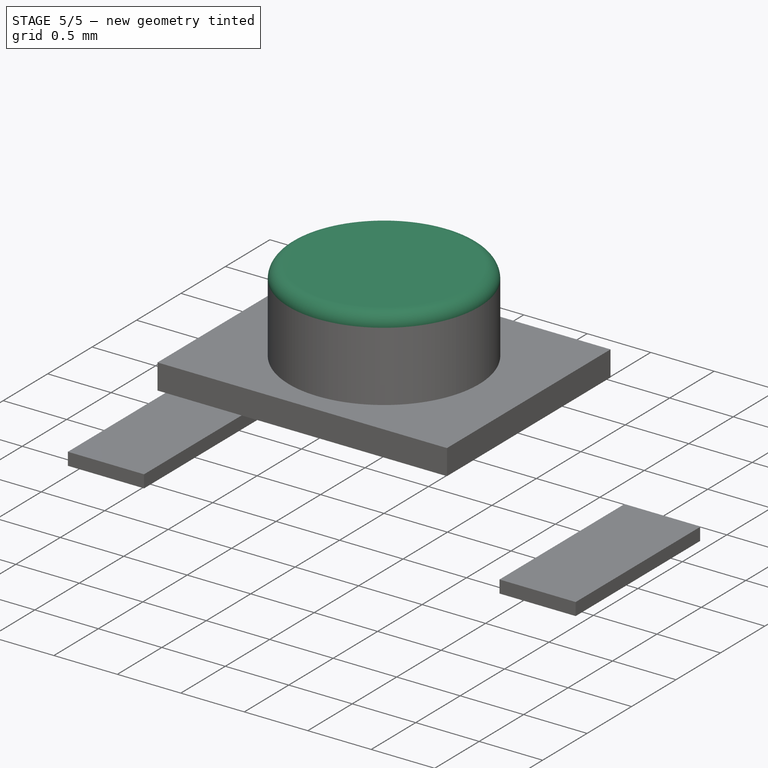
[diagram: stage 5 of 5 — iso view after this stage's code; geometry added in this stage tinted green]
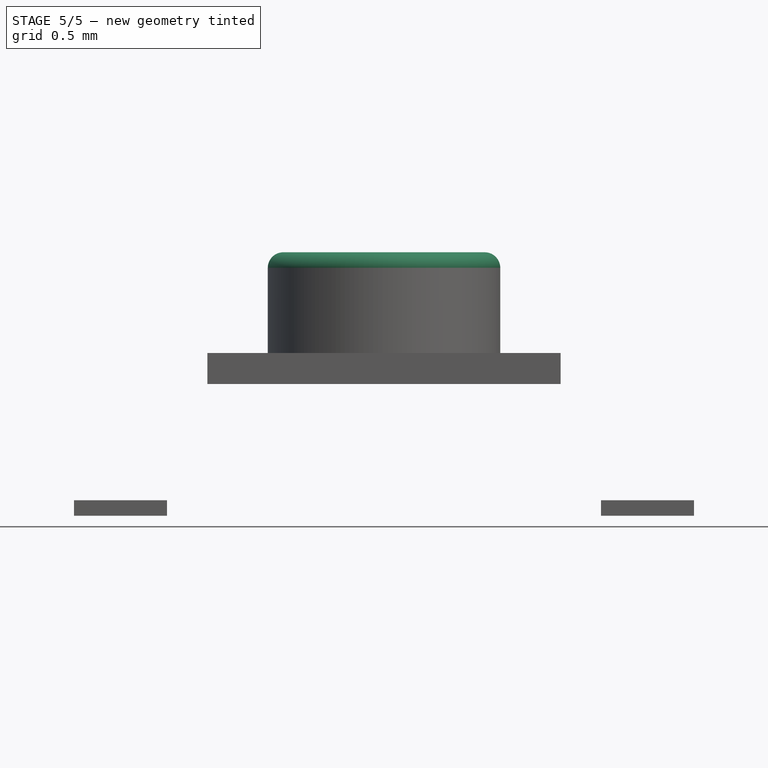
[diagram: stage 5 of 5 — front view after this stage's code; geometry added in this stage tinted green]
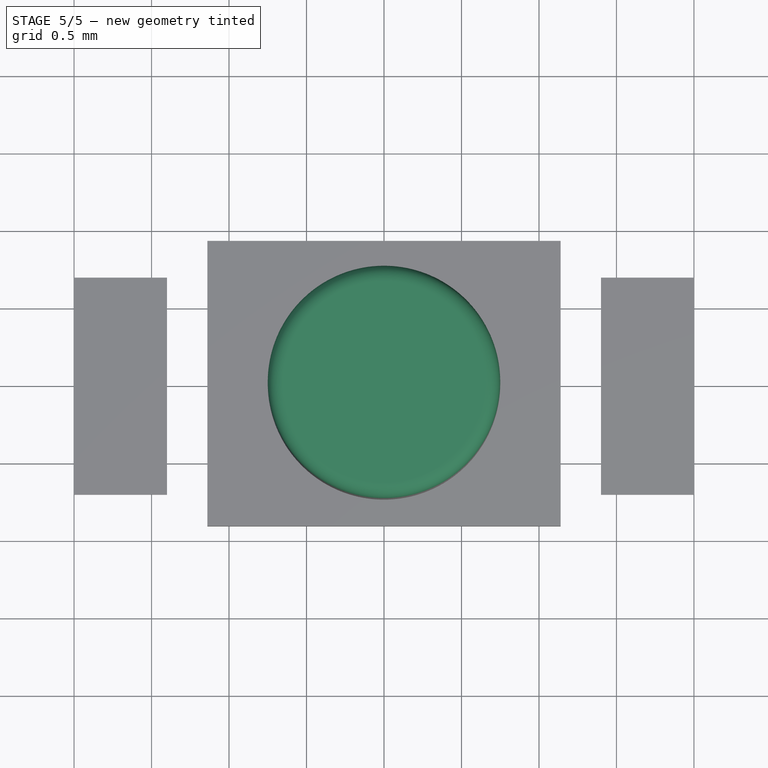
[diagram: stage 5 of 5 — top view after this stage's code; geometry added in this stage tinted green]
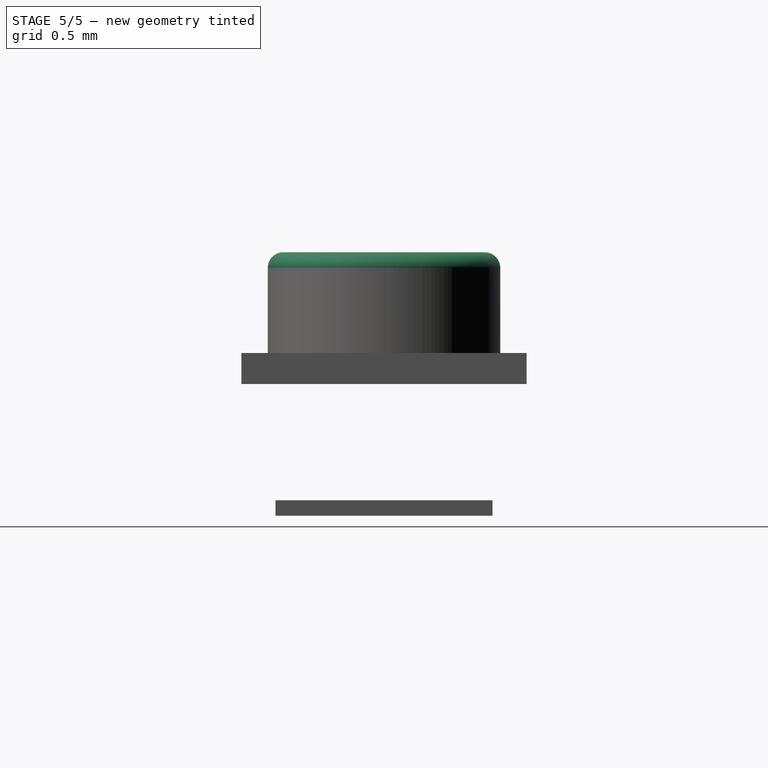
[diagram: stage 5 of 5 — right view after this stage's code; geometry added in this stage tinted green]
FEATURE [PartDesign::SubShapeBinder] Binder  label="Binder-Base"
  BindCopyOnChange = 0
  BindMode = 0
  ClaimChildren = false
  Context = -> Part [Body001.Binder.]
  Fuse = false
  MakeFace = true
  OffsetFill = false
  OffsetIntersection = false
  OffsetJoinType = 0
  OffsetOpenResult = false
  PartialLoad = false
  Refine = true
  Relative = true
  Support = -> [Body]
  _Version = 2
FEATURE [Sketcher::SketchObject] Sketch004
  ArcFitTolerance = 1e-06
  AttachmentSupport = -> [Binder]
  ExternalGeometry = -> [Binder]
  FullyConstrained = true
  MakeInternals = false
  MapMode = 5
  Placement = pos=(0,0,1.05) rot=(0,0,1;0rad)
  sketch-geometry (21):
    g0: LineSegment StartX=-1.5 StartY=-0.6 StartZ=0 EndX=-1.5 EndY=-1 EndZ=0
    g1: LineSegment StartX=1.5 StartY=-1 StartZ=0 EndX=1.5 EndY=-0.6 EndZ=0
    g2: ArcOfCircle CenterX=1.5 CenterY=-0.5 CenterZ=0 NormalX=0 NormalY=0 NormalZ=1 AngleXU=0 Radius=0.1 StartAngle=1.5708 EndAngle=4.71239
    g3: ArcOfCircle CenterX=-1.5 CenterY=-0.5 CenterZ=0 NormalX=0 NormalY=0 NormalZ=1 AngleXU=0 Radius=0.1 StartAngle=4.71239 EndAngle=7.85398
    g4: LineSegment StartX=-1.5 StartY=0.6 StartZ=0 EndX=-1.5 EndY=1 EndZ=0
    g5: LineSegment StartX=1.5 StartY=1 StartZ=0 EndX=1.5 EndY=0.6 EndZ=0
    g6: ArcOfCircle CenterX=1.5 CenterY=0.5 CenterZ=0 NormalX=0 NormalY=0 NormalZ=1 AngleXU=0 Radius=0.1 StartAngle=1.5708 EndAngle=4.71239
    g7: ArcOfCircle CenterX=-1.5 CenterY=0.5 CenterZ=0 NormalX=0 NormalY=0 NormalZ=1 AngleXU=0 Radius=0.1 StartAngle=4.71239 EndAngle=7.85398
    g8: LineSegment StartX=-1.5 StartY=0.4 StartZ=0 EndX=-1.5 EndY=-0.4 EndZ=0
    g9: LineSegment StartX=1.5 StartY=0.4 StartZ=0 EndX=1.5 EndY=-0.4 EndZ=0
    g10: Circle CenterX=0 CenterY=0 CenterZ=0 NormalX=0 NormalY=0 NormalZ=1 AngleXU=0 Radius=0.8
    g11: LineSegment StartX=-1.5 StartY=-1 StartZ=0 EndX=-1.25 EndY=-1 EndZ=0
    g12: LineSegment StartX=-1.25 StartY=-1 StartZ=0 EndX=-1.25 EndY=-1.25 EndZ=0
    g13: LineSegment StartX=-1.25 StartY=-1.25 StartZ=0 EndX=1.25 EndY=-1.25 EndZ=0
    g14: LineSegment StartX=1.25 StartY=-1.25 StartZ=0 EndX=1.25 EndY=-1 EndZ=0
    g15: LineSegment StartX=1.25 StartY=-1 StartZ=0 EndX=1.5 EndY=-1 EndZ=0
    g16: LineSegment StartX=1.5 StartY=1 StartZ=0 EndX=1.25 EndY=1 EndZ=0
    g17: LineSegment StartX=1.25 StartY=1 StartZ=0 EndX=1.25 EndY=1.25 EndZ=0
    g18: LineSegment StartX=1.25 StartY=1.25 StartZ=0 EndX=-1.25 EndY=1.25 EndZ=0
    g19: LineSegment StartX=-1.25 StartY=1.25 StartZ=0 EndX=-1.25 EndY=1 EndZ=0
    g20: LineSegment StartX=-1.25 StartY=1 StartZ=0 EndX=-1.5 EndY=1 EndZ=0
  constraints (59):
    c: Vertical(g0)
    c: Vertical(g1)
    c: Horizontal(g0,g1)
    c: Coincident(g2,g1)
    c: Coincident(g3,g0)
    c: Vertical(g3,g0)
    c: Vertical(g2,g1)
    c: Radius(g2) = 0.1
    c: DistanceY(g2,g-1) = 0.5
    c: Equal(g2,g3)
    c: Perpendicular(g2,g1)
    c: Perpendicular(g3,g0)
    c: Symmetric(g0,g4,g-1)
    c: Symmetric(g0,g4,g-1)
    c: Symmetric(g1,g5,g-1)
    c: Symmetric(g1,g5,g-1)
    c: Symmetric(g2,g6,g-1)
    c: Symmetric(g2,g6,g-1)
    c: Symmetric(g3,g7,g-1)
    c: Symmetric(g3,g7,g-1)
    c: Coincident(g8,g7)
    c: Coincident(g8,g3)
    c: Coincident(g9,g6)
    c: Coincident(g9,g2)
    c: Perpendicular(g7,g8)
    c: Perpendicular(g6,g9)
    c: Coincident(g10,g-1)
    c: Diameter(g10) = 1.6
    c: Horizontal(g11)
    c: Coincident(g11,g12)
    c: Vertical(g12)
    c: Coincident(g12,g13)
    c: Horizontal(g13)
    c: Coincident(g13,g14)
    c: Vertical(g14)
    c: Coincident(g14,g15)
    c: Horizontal(g15)
    c: Coincident(g5,g16)
    c: Coincident(g16,g17)
    c: Vertical(g17)
    c: Coincident(g17,g18)
    c: Horizontal(g18)
    c: Coincident(g18,g19)
    c: Vertical(g19)
    c: Coincident(g19,g20)
    c: Coincident(g20,g4)
    c: Horizontal(g20)
    c: Horizontal(g16)
    c: Coincident(g12,g-5)
    c: Equal(g15,g11)
    c: Equal(g11,g20)
    c: Equal(g19,g12)
    c: Equal(g16,g15)
    c: Coincident(g15,g1)
    c: Vertical(g1,g-4)
    c: Vertical(g11,g-3)
    c: DistanceY(g14,g14) = 0.25
    c: Equal(g14,g12)
    c: Coincident(g0,g11)
FEATURE [PartDesign::Pad] Pad001  label="Pad-Top"
  Direction = (0,0,1)
  Length = 0.15
  Length2 = 10
  Profile = -> Sketch004
  ReferenceAxis = -> Sketch004 [N_Axis]
  Refine = true
  Suppressed = false
  Type = 0
FEATURE [PartDesign::Plane] DatumPlane
  AttachmentOffset = pos=(0,0,1.7) rot=(0,0,1;0rad)
  AttachmentSupport = -> [XY_Plane005]
  Length = 60
  MapMode = 5
  Placement = pos=(0,0,1.7) rot=(0,0,1;0rad)
  ResizeMode = 0
  Width = 60
FEATURE [Sketcher::SketchObject] Sketch010
  ArcFitTolerance = 1e-06
  AttachmentSupport = -> [DatumPlane]
  FullyConstrained = true
  MakeInternals = false
  MapMode = 5
  Placement = pos=(0,0,1.7) rot=(0,0,1;0rad)
  sketch-geometry (1):
    g0: Circle CenterX=0 CenterY=0 CenterZ=0 NormalX=0 NormalY=0 NormalZ=1 AngleXU=0 Radius=0.75
  constraints (2):
    c: Diameter(g0) = 1.5
    c: Coincident(g0,g-1)
FEATURE [PartDesign::SubShapeBinder] Binder002  label="Binder-Shell"
  BindCopyOnChange = 0
  BindMode = 0
  ClaimChildren = false
  Context = -> Part [Body003.Binder002.]
  Fuse = false
  MakeFace = true
  OffsetFill = false
  OffsetIntersection = false
  OffsetJoinType = 0
  OffsetOpenResult = false
  PartialLoad = false
  Refine = true
  Relative = true
  Support = -> [Body001]
  _Version = 2
FEATURE [PartDesign::Pad] Pad007  label="Pad-ButtonTop"
  Direction = (0,0,1)
  Length = 10
  Length2 = 10
  Placement = pos=(0,0,1.7) rot=(0,0,1;0rad)
  Profile = -> Sketch010
  ReferenceAxis = -> Sketch010 [N_Axis]
  Refine = true
  Suppressed = false
  Type = 3
  UpToFace = -> Binder002 [Face27]
FEATURE [Sketcher::SketchObject] Sketch011
  ArcFitTolerance = 1e-06
  AttachmentSupport = -> [Pad007]
  ExternalGeometry = -> [Binder002]
  FullyConstrained = true
  MakeInternals = false
  MapMode = 5
  Placement = pos=(0,0,1.05) rot=(1,0,0;3.14159rad)
  sketch-geometry (7):
    g0: LineSegment StartX=1.14 StartY=0.92 StartZ=0 EndX=1.14 EndY=-0.92 EndZ=0
    g1: LineSegment StartX=1.14 StartY=-0.92 StartZ=0 EndX=-1.14 EndY=-0.92 EndZ=0
    g2: LineSegment StartX=-1.14 StartY=-0.92 StartZ=0 EndX=-1.14 EndY=0.92 EndZ=0
    g3: LineSegment StartX=-1.14 StartY=0.92 StartZ=0 EndX=1.14 EndY=0.92 EndZ=0
    g4: GeomPoint [constr] X=0 Y=0 Z=0
    g5: LineSegment [constr] StartX=-1.14 StartY=-0.92 StartZ=0 EndX=-1.5 EndY=-0.92 EndZ=0
    g6: LineSegment [constr] StartX=-1.14 StartY=-0.92 StartZ=0 EndX=-1.14 EndY=-1.1 EndZ=0
  constraints (18):
    c: Coincident(g0,g1)
    c: Coincident(g1,g2)
    c: Coincident(g2,g3)
    c: Coincident(g3,g0)
    c: Vertical(g0)
    c: Vertical(g2)
    c: Horizontal(g1)
    c: Horizontal(g3)
    c: Symmetric(g2,g0,g4)
    c: Coincident(g4,g-1)
    c: DistanceX(g1,g1) = 2.28
    c: Coincident(g5,g1)
    c: PointOnObject(g5,g-4)
    c: Coincident(g6,g1)
    c: PointOnObject(g6,g-3)
    c: Vertical(g6)
    c: Horizontal(g5)
    c: DistanceY(g6,g6) = 0.18
FEATURE [PartDesign::Pad] Pad008
  BaseFeature = -> Pad007
  Direction = (0,0,-1)
  Length = 0.2
  Length2 = 10
  Placement = pos=(0,0,1.7) rot=(0,0,1;0rad)
  Profile = -> Sketch011
  ReferenceAxis = -> Sketch011 [N_Axis]
  Refine = true
  Suppressed = false
  Type = 0
FEATURE [PartDesign::Fillet] Fillet001
  Base = -> Pad008 [Edge3]
  BaseFeature = -> Pad008
  Placement = pos=(0,0,1.7) rot=(0,0,1;0rad)
  Radius = 0.1
  Refine = true
  SupportTransform = false
  Suppressed = false
  UseAllEdges = false
FEATURE [PartDesign::Body] Body  label="Base"
  AllowCompound = false
  Group = -> [Sketch,Pad,Sketch001,Pocket,Pocket002,Sketch003,MultiTransform,Mirrored,Mirrored001,Sketch002,Pocket001,Mirrored002,Sketch012,Pocket003,Sketch013,Pocket004]
  Origin = -> Origin001
  Tip = -> Pocket004
FEATURE [Image::ImagePlane] side  label="front"
  Placement = pos=(-0.1,2e-16,0.7) rot=(1,0,0;1.5708rad)
  XSize = 5.68559
  YSize = 4.31817
FEATURE [Image::ImagePlane] side001  label="side"
  Placement = pos=(-1e-16,-0.285,0.08) rot=(0.57735,0.57735,0.57735;2.0944rad)
  XSize = 4.0127
  YSize = 3.48931
FEATURE [Image::ImagePlane] section
  Placement = pos=(0.066,2e-16,0.685) rot=(1,0,0;1.5708rad)
  XSize = 4.64523
  YSize = 2.68202
FEATURE [Image::ImagePlane] top
  Placement = pos=(-0.05,0.1575,0) rot=(0,0,1;0rad)
  XSize = 6.05775
  YSize = 3.79331
FEATURE [App::DocumentObjectGroup] Group  label="Reference"
  Group = -> [side,side001,section,top]
FEATURE [PartDesign::Pad] Pad003  label="Pad-Side"
  BaseFeature = -> Pad001
  Direction = (0,0,-1)
  Length = 10
  Length2 = 10
  Offset = -0.05
  Profile = -> Sketch006
  ReferenceAxis = -> Sketch006 [N_Axis]
  Refine = true
  Suppressed = false
  Type = 3
  UpToFace = -> Binder [Face12]
FEATURE [PartDesign::Fillet] Fillet
  Base = -> Pad003 [Edge32]
  BaseFeature = -> Pad003
  Radius = 0.15
  Refine = true
  SupportTransform = false
  Suppressed = false
  UseAllEdges = false
FEATURE [PartDesign::Mirrored] Mirrored003
  BaseFeature = -> Fillet
  MirrorPlane = -> XZ_Plane002
  Originals = -> [Pad003,Fillet]
  Refine = true
  Suppressed = false
  TransformMode = 0
FEATURE [Sketcher::SketchObject] Sketch007
  ArcFitTolerance = 1e-06
  AttachmentSupport = -> [Mirrored003]
  ExternalGeometry = -> [Binder,Mirrored003]
  FullyConstrained = true
  MakeInternals = false
  MapMode = 5
  Placement = pos=(0,0,0.6) rot=(1,0,0;3.14159rad)
  sketch-geometry (4):
    g0: LineSegment StartX=-1.25 StartY=1.1 StartZ=0 EndX=-0.9 EndY=1.1 EndZ=0
    g1: LineSegment StartX=-0.9 StartY=1.1 StartZ=0 EndX=-0.9 EndY=1.25 EndZ=0
    g2: LineSegment StartX=-0.9 StartY=1.25 StartZ=0 EndX=-1.25 EndY=1.25 EndZ=0
    g3: LineSegment StartX=-1.25 StartY=1.25 StartZ=0 EndX=-1.25 EndY=1.1 EndZ=0
  constraints (11):
    c: Coincident(g0,g1)
    c: Coincident(g1,g2)
    c: Coincident(g2,g3)
    c: Coincident(g3,g0)
    c: Horizontal(g0)
    c: Horizontal(g2)
    c: Vertical(g1)
    c: Vertical(g3)
    c: Coincident(g0,g-4)
    c: Horizontal(g1,g-3)
    c: DistanceX(g1,g-3) = 0.05
FEATURE [PartDesign::Pad] Pad004  label="Pad-TabBase"
  BaseFeature = -> Mirrored003
  Direction = (0,0,-1)
  Length = 0.4
  Length2 = 10
  Profile = -> Sketch007
  ReferenceAxis = -> Sketch007 [N_Axis]
  Refine = true
  Suppressed = false
  Type = 0
FEATURE [Sketcher::SketchObject] Sketch008
  ArcFitTolerance = 1e-06
  AttachmentSupport = -> [Pad004]
  ExternalGeometry = -> [Pad004,Binder]
  FullyConstrained = true
  MakeInternals = false
  MapMode = 5
  Placement = pos=(0,0,0.2) rot=(1,0,0;3.14159rad)
  sketch-geometry (5):
    g0: LineSegment StartX=-1.25 StartY=1.1 StartZ=0 EndX=-1.3634 EndY=0.85 EndZ=0
    g1: LineSegment StartX=-1.3634 StartY=0.85 StartZ=0 EndX=-1.5 EndY=0.911961 EndZ=0
    g2: LineSegment StartX=-1.5 StartY=0.911961 StartZ=0 EndX=-1.3866 EndY=1.16196 EndZ=0
    g3: ArcOfCircle CenterX=-1.25 CenterY=1.1 CenterZ=0 NormalX=0 NormalY=0 NormalZ=1 AngleXU=0 Radius=0.15 StartAngle=1.5708 EndAngle=2.71576
    g4: LineSegment StartX=-1.25 StartY=1.25 StartZ=0 EndX=-1.25 EndY=1.1 EndZ=0
  constraints (12):
    c: Coincident(g0,g-3)
    c: Coincident(g0,g1)
    c: Coincident(g1,g2)
    c: Tangent(g3,g-4) = -1.5708
    c: Tangent(g3,g2) = 1.5708
    c: Perpendicular(g1,g2)
    c: Parallel(g2,g0)
    c: Coincident(g4,g3)
    c: Coincident(g4,g0)
    c: PointOnObject(g1,g-5)
    c: PointOnObject(g0,g-6)
    c: Distance(g1,g1) = 0.15
FEATURE [PartDesign::Pad] Pad005  label="Pad-Tab"
  BaseFeature = -> Pad004
  Direction = (0,0,-1)
  Length = 10
  Length2 = 10
  Profile = -> Sketch008
  ReferenceAxis = -> Sketch008 [N_Axis]
  Refine = true
  Suppressed = false
  Type = 3
  UpToFace = -> Binder [Face18]
FEATURE [PartDesign::MultiTransform] MultiTransform001  label="MultiTransform-Tabs"
  BaseFeature = -> Pad005
  Originals = -> [Pad004,Pad005]
  Refine = true
  Suppressed = false
  TransformMode = 0
  Transformations = -> [Mirrored004,Mirrored005]
FEATURE [PartDesign::Mirrored] Mirrored009
  BaseFeature = -> Fillet002
  MirrorPlane = -> XZ_Plane008
  Originals = -> [Pad011,Fillet002]
  Refine = true
  Suppressed = false
  TransformMode = 0
FEATURE [Sketcher::SketchObject] Sketch020
  ArcFitTolerance = 1e-06
  AttachmentSupport = -> [Mirrored009]
  ExternalGeometry = -> [Binder003,Mirrored009]
  FullyConstrained = true
  MakeInternals = false
  MapMode = 5
  Placement = pos=(0,0,0.6) rot=(1,0,0;3.14159rad)
  sketch-geometry (4):
    g0: LineSegment StartX=-1.25 StartY=1.1 StartZ=0 EndX=-0.9 EndY=1.1 EndZ=0
    g1: LineSegment StartX=-0.9 StartY=1.1 StartZ=0 EndX=-0.9 EndY=1.25 EndZ=0
    g2: LineSegment StartX=-0.9 StartY=1.25 StartZ=0 EndX=-1.25 EndY=1.25 EndZ=0
    g3: LineSegment StartX=-1.25 StartY=1.25 StartZ=0 EndX=-1.25 EndY=1.1 EndZ=0
  constraints (11):
    c: Coincident(g0,g1)
    c: Coincident(g1,g2)
    c: Coincident(g2,g3)
    c: Coincident(g3,g0)
    c: Horizontal(g0)
    c: Horizontal(g2)
    c: Vertical(g1)
    c: Vertical(g3)
    c: Coincident(g0,g-4)
    c: Horizontal(g1,g-3)
    c: DistanceX(g1,g-3) = 0.05
FEATURE [PartDesign::Pad] Pad012  label="Pad-TabBase001"
  BaseFeature = -> Mirrored009
  Direction = (0,0,-1)
  Length = 0.4
  Length2 = 10
  Profile = -> Sketch020
  ReferenceAxis = -> Sketch020 [N_Axis]
  Refine = true
  Suppressed = false
  Type = 0
FEATURE [Sketcher::SketchObject] Sketch021
  ArcFitTolerance = 1e-06
  AttachmentSupport = -> [Pad012]
  ExternalGeometry = -> [Pad012,Binder003]
  FullyConstrained = true
  MakeInternals = false
  MapMode = 5
  Placement = pos=(0,0,0.2) rot=(1,0,0;3.14159rad)
  sketch-geometry (5):
    g0: LineSegment StartX=-1.25 StartY=1.1 StartZ=0 EndX=-1.3634 EndY=0.85 EndZ=0
    g1: LineSegment StartX=-1.3634 StartY=0.85 StartZ=0 EndX=-1.5 EndY=0.911961 EndZ=0
    g2: LineSegment StartX=-1.5 StartY=0.911961 StartZ=0 EndX=-1.3866 EndY=1.16196 EndZ=0
    g3: ArcOfCircle CenterX=-1.25 CenterY=1.1 CenterZ=0 NormalX=0 NormalY=0 NormalZ=1 AngleXU=0 Radius=0.15 StartAngle=1.5708 EndAngle=2.71576
    g4: LineSegment StartX=-1.25 StartY=1.25 StartZ=0 EndX=-1.25 EndY=1.1 EndZ=0
  constraints (12):
    c: Coincident(g0,g-3)
    c: Coincident(g0,g1)
    c: Coincident(g1,g2)
    c: Tangent(g3,g-4) = -1.5708
    c: Tangent(g3,g2) = 1.5708
    c: Perpendicular(g1,g2)
    c: Parallel(g2,g0)
    c: Coincident(g4,g3)
    c: Coincident(g4,g0)
    c: PointOnObject(g1,g-5)
    c: PointOnObject(g0,g-6)
    c: Distance(g1,g1) = 0.15
FEATURE [PartDesign::Pad] Pad013  label="Pad-Tab001"
  BaseFeature = -> Pad012
  Direction = (0,0,-1)
  Length = 10
  Length2 = 10
  Profile = -> Sketch021
  ReferenceAxis = -> Sketch021 [N_Axis]
  Refine = true
  Suppressed = false
  Type = 3
  UpToFace = -> Binder003 [Face35]
FEATURE [PartDesign::MultiTransform] MultiTransform003  label="MultiTransform-Tabs001"
  BaseFeature = -> Pad013
  Originals = -> [Pad012,Pad013]
  Refine = true
  Suppressed = false
  TransformMode = 0
  Transformations = -> [Mirrored010,Mirrored011]
FEATURE [Sketcher::SketchObject] Sketch023
  ArcFitTolerance = 1e-06
  AttachmentSupport = -> [DatumPlane001]
  FullyConstrained = true
  MakeInternals = false
  MapMode = 5
  Placement = pos=(0,0,1.7) rot=(0,0,1;0rad)
  sketch-geometry (1):
    g0: Circle CenterX=0 CenterY=0 CenterZ=0 NormalX=0 NormalY=0 NormalZ=1 AngleXU=0 Radius=0.75
  constraints (2):
    c: Diameter(g0) = 1.5
    c: Coincident(g0,g-1)
FEATURE [PartDesign::Pad] Pad015  label="Pad-ButtonTop001"
  Direction = (0,0,1)
  Length = 10
  Length2 = 10
  Placement = pos=(0,0,1.7) rot=(0,0,1;0rad)
  Profile = -> Sketch023
  ReferenceAxis = -> Sketch023 [N_Axis]
  Refine = true
  Suppressed = false
  Type = 3
  UpToFace = -> Binder005 [Face27]
FEATURE [Sketcher::SketchObject] Sketch024
  ArcFitTolerance = 1e-06
  AttachmentSupport = -> [Pad015]
  ExternalGeometry = -> [Binder005]
  FullyConstrained = true
  MakeInternals = false
  MapMode = 5
  Placement = pos=(0,0,1.05) rot=(1,0,0;3.14159rad)
  sketch-geometry (7):
    g0: LineSegment StartX=1.14 StartY=0.92 StartZ=0 EndX=1.14 EndY=-0.92 EndZ=0
    g1: LineSegment StartX=1.14 StartY=-0.92 StartZ=0 EndX=-1.14 EndY=-0.92 EndZ=0
    g2: LineSegment StartX=-1.14 StartY=-0.92 StartZ=0 EndX=-1.14 EndY=0.92 EndZ=0
    g3: LineSegment StartX=-1.14 StartY=0.92 StartZ=0 EndX=1.14 EndY=0.92 EndZ=0
    g4: GeomPoint [constr] X=0 Y=0 Z=0
    g5: LineSegment [constr] StartX=-1.14 StartY=-0.92 StartZ=0 EndX=-1.5 EndY=-0.92 EndZ=0
    g6: LineSegment [constr] StartX=-1.14 StartY=-0.92 StartZ=0 EndX=-1.14 EndY=-1.1 EndZ=0
  constraints (18):
    c: Coincident(g0,g1)
    c: Coincident(g1,g2)
    c: Coincident(g2,g3)
    c: Coincident(g3,g0)
    c: Vertical(g0)
    c: Vertical(g2)
    c: Horizontal(g1)
    c: Horizontal(g3)
    c: Symmetric(g2,g0,g4)
    c: Coincident(g4,g-1)
    c: DistanceX(g1,g1) = 2.28
    c: Coincident(g5,g1)
    c: PointOnObject(g5,g-4)
    c: Coincident(g6,g1)
    c: PointOnObject(g6,g-3)
    c: Vertical(g6)
    c: Horizontal(g5)
    c: DistanceY(g6,g6) = 0.18
FEATURE [PartDesign::Pad] Pad016
  BaseFeature = -> Pad015
  Direction = (0,0,-1)
  Length = 0.2
  Length2 = 10
  Placement = pos=(0,0,1.7) rot=(0,0,1;0rad)
  Profile = -> Sketch024
  ReferenceAxis = -> Sketch024 [N_Axis]
  Refine = true
  Suppressed = false
  Type = 0
FEATURE [PartDesign::Fillet] Fillet003
  Base = -> Pad016 [Edge3]
  BaseFeature = -> Pad016
  Placement = pos=(0,0,1.7) rot=(0,0,1;0rad)
  Radius = 0.1
  Refine = true
  SupportTransform = false
  Suppressed = false
  UseAllEdges = false
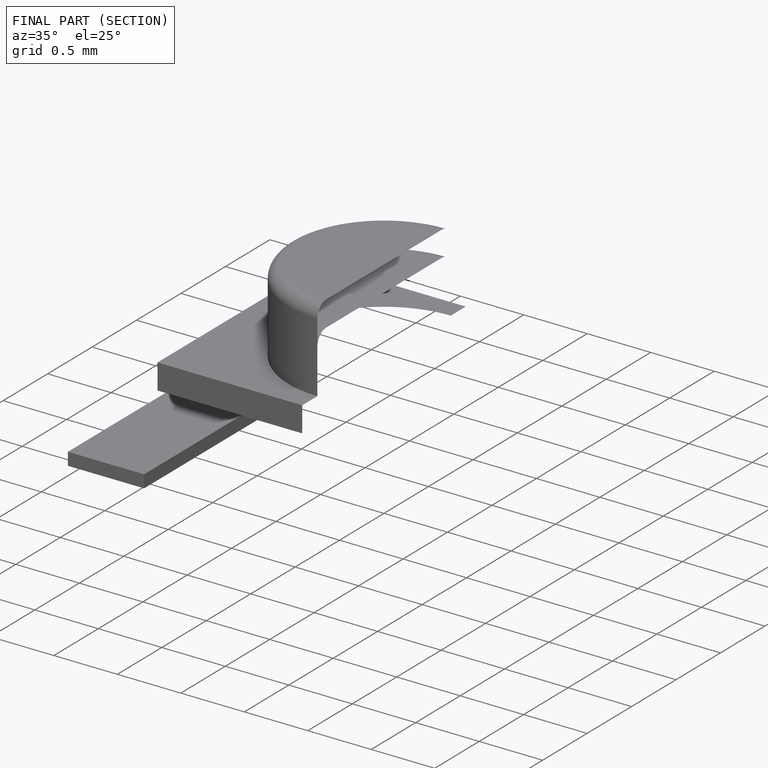
[diagram: finished part — half-section view (interior)]
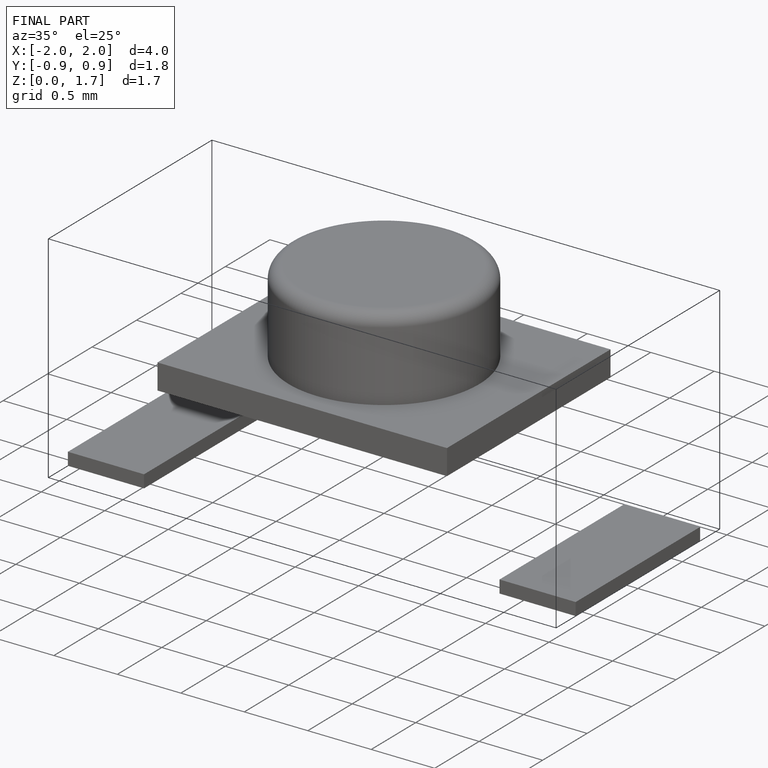
[diagram: finished part — iso view with bounding-box wireframe]
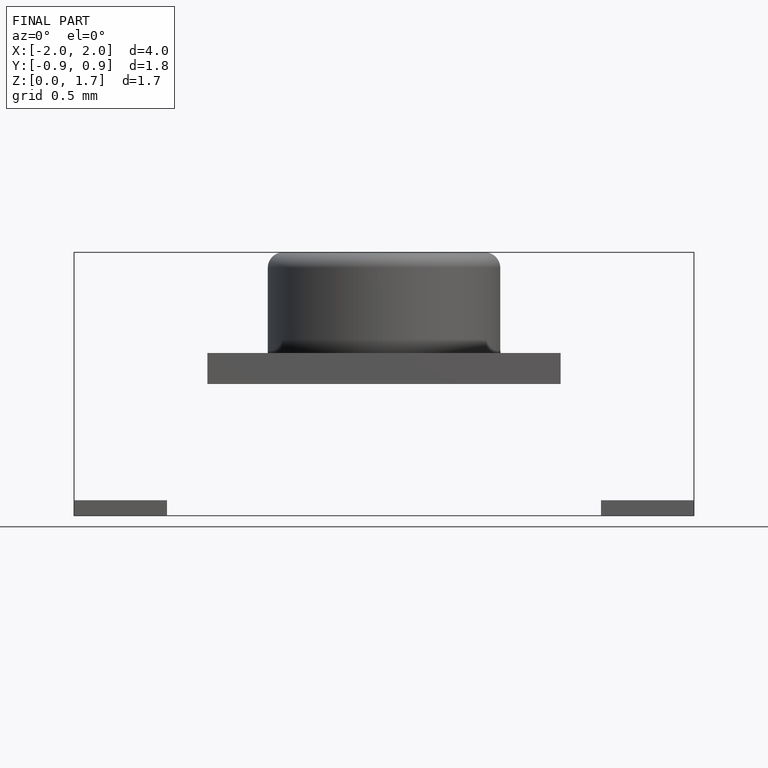
[diagram: finished part — front view with bounding-box wireframe]
